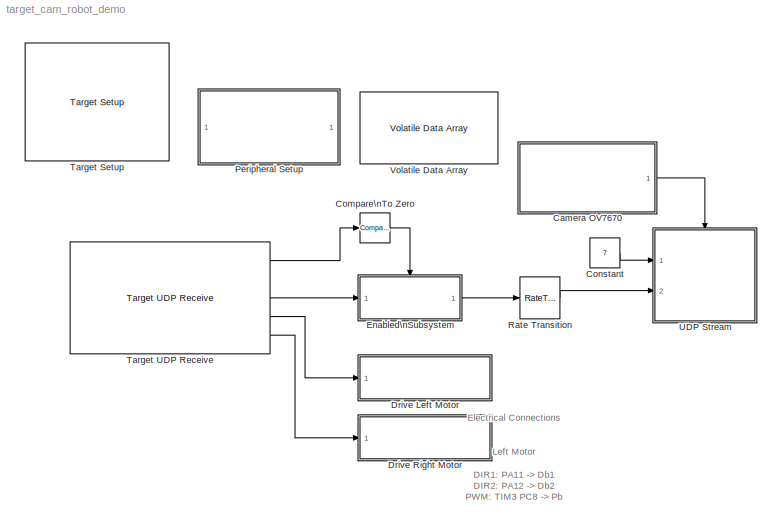
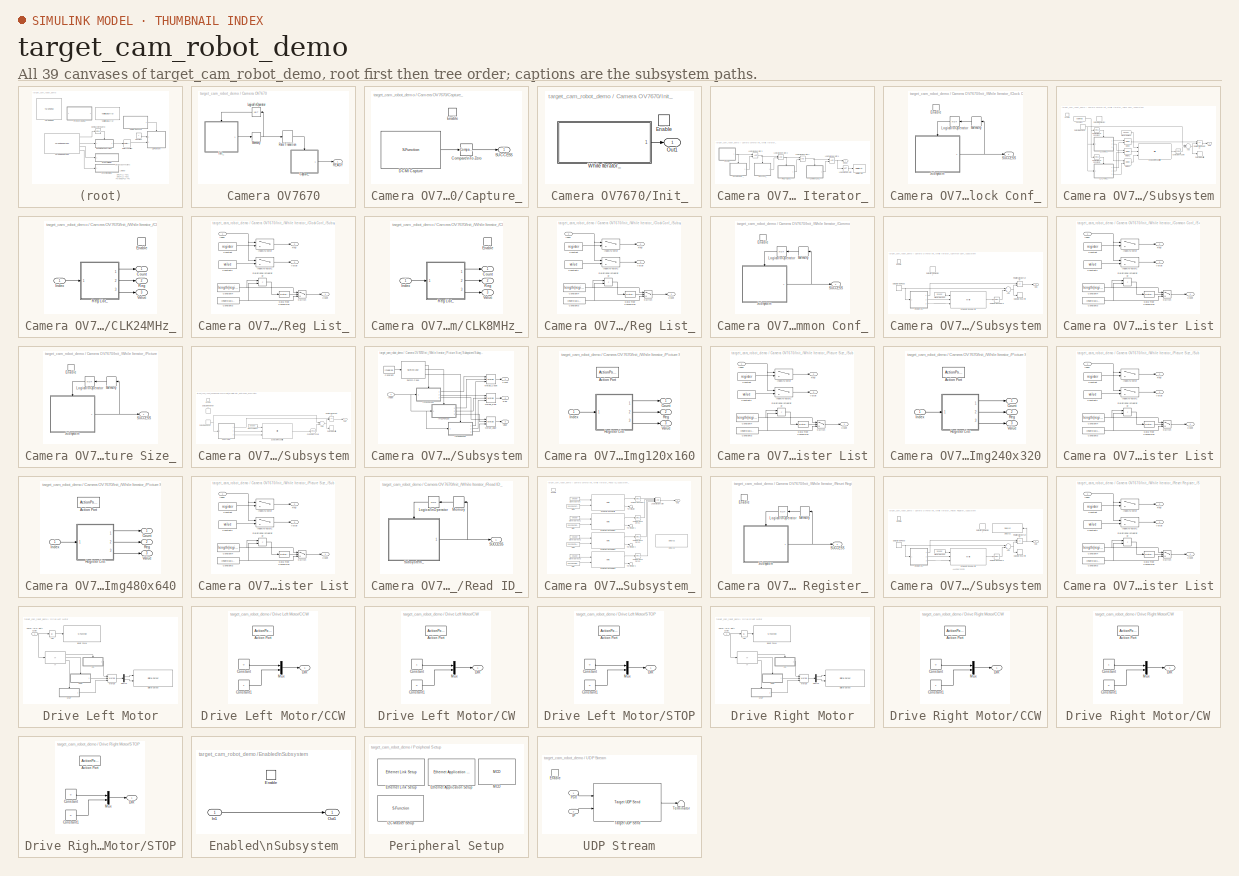
[diagram: thumbnail index - all 39 canvases of the model, root first then tree order]
MODEL target_cam_robot_demo
KIND model
CONFIG PreLoadFcn = waijung.modelPreload; % Required for working with Waijung Blockset. Do not remove.
BLOCK [SubSystem] Camera OV7670
  FunctionWithSeparateData = off
  MaskCallbackString = waijung_image_sensor_callback('camera');|waijung_image_sensor_callback('storagename');|||waijung_image_sensor_callback('module');||
  MaskDisplay = text(0.5, 0.5, '[OV7670]\\nPort: I2C1','ver','middle','hor','center');port_label('output', 1,'READY');
  MaskEnableString = on,on,on,on,on,on,on
  MaskHideContents = off
  MaskIconFrame = on
  MaskIconOpaque = on
  MaskIconRotate = none
  MaskIconUnits = normalized
  MaskInitialization = waijung_image_sensor_callback('init');
  MaskPortRotate = default
  MaskPromptString = Camera|Output buffer|XCLK input frequency|Image size|I2C Module|I2C Slave address|Sample time (sec)
  MaskSelfModifiable = on
  MaskStyleString = popup(OV7670),popup(Output|ExtRAM),popup(8MHz(MCO)|24MHz),popup(120 x 160|240 x 320|480 x 640),popup(1|2|3),edit,edit
  MaskTabNameString = ,,,,,,
  MaskToolTipString = on,on,on,on,on,on,on
  MaskTunableValueString = off,off,on,on,off,on,on
  MaskValueString = OV7670|ExtRAM|8MHz(MCO)|120 x 160|1|hex2dec('42')|0.01
  MaskVarAliasString = ,,,,,,
  MaskVariables = camera=@1;storagename=&2;xclkfreq=@3;imgsize=@4;module=@5;slvaddr=@6;sampletime=@7;
  MaskVisibilityString = off,on,on,on,on,on,on
  MinAlgLoopOccurrences = off
  Opaque = off
  Ports = [0, 1]
  PropExecContextOutsideSubsystem = off
  RTWSystemCode = Auto
  RequestExecContextInheritance = off
BLOCK [SubSystem] Camera OV7670/Capture_
  FunctionWithSeparateData = off
  MaskHideContents = off
  MinAlgLoopOccurrences = off
  Opaque = off
  Ports = [0, 1, 1]
  PropExecContextOutsideSubsystem = off
  RTWSystemCode = Auto
  RequestExecContextInheritance = off
  TreatAsAtomicUnit = on
BLOCK [Reference] Camera OV7670/Capture_/Compare\nTo Zero  REF=simulink/Logic and Bit\nOperations/Compare\nTo Zero
  FunctionWithSeparateData = off
  LogicOutDataTypeMode = uint8
  Ports = [1, 1]
  RTWMemSecDataConstants = Inherit from model
  RTWMemSecDataInternal = Inherit from model
  RTWMemSecDataParameters = Inherit from model
  RTWMemSecFuncExecute = Inherit from model
  RTWMemSecFuncInitTerm = Inherit from model
  ShowPortLabels = FromPortIcon
  SourceBlock = simulink/Logic and Bit\nOperations/Compare\nTo Zero
  SourceType = Compare To Zero
  SystemSampleTime = -1
  ZeroCross = off
  relop = ==
BLOCK [S-Function] Camera OV7670/Capture_/DCMI Capture
  EnableBusSupport = off
  FunctionName = stm32f4_dcmi
  MaskCallbackString = stm32f4_dcmi_callback('conf');||||||||stm32f4_dcmi_callback('storagename');|||stm32f4_dcmi_callback('storagesize');|stm32f4_dcmi_callback('remap');|stm32f4_dcmi_callback('sampletime');|stm32f4_dcmi_callback('blockid');|||||||||
  MaskDescription = Synchronize mode:\n - Hardware: Hardware synchronization data capture is synchronized with the HSYNC/VSYNC signals.\n - Embedded: Embedded synchronization data capture is synchronized with synchronization codes embedded in the data flow.\nPixel clock polarity:\n - Falling: Pixel clock active on Falling edge.\n - Rising: Pixel clock active on Rising edge.\nVertical, Horizontal sychronization polari...<+476ch>
  MaskDisplay = text(0.05, 0.5, 'Size: 38400\\nPins: Profile #2\\nTs (sec): 0.01','ver','middle','hor','left'); port_label('output', 1,'Status');
  MaskEnableString = on,off,off,on,on,on,off,on,on,on,on,on,on,on,off,on,on,on,on,on,on,on,on,off
  MaskHelp = web(fullfile(waijungdocroot,'stm32f4_dcmi.htm'), '-browser')
  MaskIconFrame = on
  MaskIconOpaque = on
  MaskIconRotate = none
  MaskIconUnits = normalized
  MaskInitialization = stm32f4_dcmi_callback('init');
  MaskPortRotate = default
  MaskPromptString = Configuration|Capture mode|Synchronization Mode|Pixel clock polarity|Vertical synchronization polarity|Horizontal synchronization polarity|Capture rate|Capture data size (Bytes)|Output buffer|Output buffer var name|Output buffer var type|Output buffer size (Total bytes must be equal to, or greater than DMA Transfer size)|Remap DCMI pins|Sample time (sec)|BlockID|Input port|Input Port Width|Input p...<+134ch>
  MaskSelfModifiable = on
  MaskStyleString = popup(DCMI),popup(Continuous|SnapShot),popup(Hardware|Embedded),popup(Falling|Rising),popup(High|Low),popup(High|Low),popup(All|1of2|1of4),edit,popup(<Manual Configure>),edit,popup(double|single|int8|uint8|int16|uint16|int32|uint32),edit,popup(Profile #1|Profile #2),edit,edit,edit,edit,edit,edit,edit,edit,edit,edit,edit
  MaskTabNameString = ,,,,,,,,,,,,,,,,,,,,,,,
  MaskToolTipString = on,on,on,on,on,on,on,on,on,on,on,on,on,on,on,on,on,on,on,on,on,on,on,on
  MaskTunableValueString = off,off,off,off,off,off,off,off,off,off,off,off,off,off,off,off,off,off,off,off,off,off,off,off
  MaskType = stm32f4_dcmi
  MaskValueString = DCMI|SnapShot|Hardware|Falling|High|High|All|120*160*2|<Manual Configure>|VolatileDataArray_Output|uint16|120*160|Profile #2|inf|CameraOV7670Capture_DCMICapture|[]|[]|{}|[7]|[]|{'Status'}|0|[\"DCMI\",\"SnapShot\",\"Hardware\",\"Falling\",\"High\",\"High\",\"All\",\"0\",\"HalfWord\",\"9600\",\"0\",\"0\",\"VolatileDataArray_Output\",\" \",\" \",\" \",\"1\",\"0\",\"0\",\"0\",\"0\",\"0\",\"0\",\"1\",\...<+178ch>
  MaskVarAliasString = ,,,,,,,,,,,,,,,,,,,,,,,
  MaskVariables = conf=&1;capturemode=&2;synchronizemode=&3;pclkpolarity=&4;vspolarity=&5;hspolarity=&6;capturerate=&7;capturesize=&8;storagename=&9;varname=&10;storagetype=&11;storagesize=&12;remap=&13;sampletime=@14;blockid=&15;inputporttype=@16;inputportwidth=@17;inputportlabel=&18;outputporttype=@19;outputportwidth=@20;outputportlabel=&21;compat=&22;optionstring=&23;portpinstr=&24;
  MaskVisibilityString = off,on,on,on,on,on,on,on,on,on,on,on,on,on,off,off,off,off,off,off,off,off,off,off
  Parameters = conf,inputporttype,inputportwidth,outputporttype,outputportwidth,optionstring,sampletime,blockid
  Ports = [0, 1]
BLOCK [EnablePort] Camera OV7670/Capture_/Enable
  Ports = []
BLOCK [Outport] Camera OV7670/Capture_/SUCCESS
  IconDisplay = Port number
  OutDataType = fixdt(1, 16)
  OutScaling = 2^0
BLOCK [SubSystem] Camera OV7670/Init_
  FunctionWithSeparateData = off
  MaskHideContents = off
  MinAlgLoopOccurrences = off
  Opaque = off
  Ports = [0, 1, 1]
  PropExecContextOutsideSubsystem = off
  RTWSystemCode = Auto
  RequestExecContextInheritance = off
BLOCK [EnablePort] Camera OV7670/Init_/Enable
  Ports = []
BLOCK [Outport] Camera OV7670/Init_/Out1
  IconDisplay = Port number
BLOCK [SubSystem] Camera OV7670/Init_/While Iterator_
  FunctionWithSeparateData = off
  MaskHideContents = off
  MinAlgLoopOccurrences = off
  Opaque = off
  Ports = [0, 1]
  PropExecContextOutsideSubsystem = off
  RTWSystemCode = Auto
  RequestExecContextInheritance = off
  TreatAsAtomicUnit = on
BLOCK [SubSystem] Camera OV7670/Init_/While Iterator_/Clock Conf_
  FunctionWithSeparateData = off
  MaskHideContents = off
  MinAlgLoopOccurrences = off
  Opaque = off
  Ports = [0, 1, 1]
  PropExecContextOutsideSubsystem = off
  RTWSystemCode = Auto
  RequestExecContextInheritance = off
BLOCK [EnablePort] Camera OV7670/Init_/While Iterator_/Clock Conf_/Enable
  Ports = []
BLOCK [Logic] Camera OV7670/Init_/While Iterator_/Clock Conf_/Logical\nOperator
  AllPortsSameDT = off
  LogicDataType = fixdt(0, 8)
  Operator = NOT
  OutDataTypeMode = boolean
  OutDataTypeStr = boolean
  Ports = [1, 1]
BLOCK [Memory] Camera OV7670/Init_/While Iterator_/Clock Conf_/Memory
  InheritSampleTime = on
BLOCK [Outport] Camera OV7670/Init_/While Iterator_/Clock Conf_/SUCCESS
  IconDisplay = Port number
  OutDataType = fixdt(1, 16)
  OutScaling = 2^0
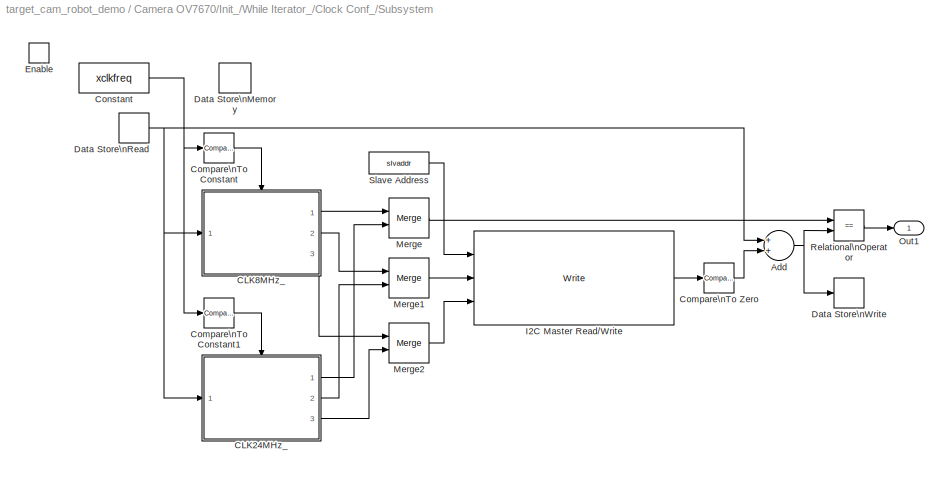
BLOCK [SubSystem] Camera OV7670/Init_/While Iterator_/Clock Conf_/Subsystem
  FunctionWithSeparateData = off
  MaskHideContents = off
  MinAlgLoopOccurrences = off
  Opaque = off
  Ports = [0, 1, 1]
  PropExecContextOutsideSubsystem = off
  RTWSystemCode = Auto
  RequestExecContextInheritance = off
BLOCK [Sum] Camera OV7670/Init_/While Iterator_/Clock Conf_/Subsystem/Add
  InputSameDT = off
  OutDataType = fixdt(1, 16)
  OutDataTypeMode = Inherit via internal rule
  OutDataTypeStr = Inherit: Inherit via internal rule
  OutScaling = 2^-10
  Ports = [2, 1]
  SaturateOnIntegerOverflow = off
BLOCK [SubSystem] Camera OV7670/Init_/While Iterator_/Clock Conf_/Subsystem/CLK24MHz_
  FunctionWithSeparateData = off
  MaskHideContents = off
  MinAlgLoopOccurrences = off
  Opaque = off
  Ports = [1, 3, 1]
  PropExecContextOutsideSubsystem = off
  RTWSystemCode = Auto
  RequestExecContextInheritance = off
  TreatAsAtomicUnit = on
BLOCK [Outport] Camera OV7670/Init_/While Iterator_/Clock Conf_/Subsystem/CLK24MHz_/Count
  IconDisplay = Port number
  OutDataType = fixdt(1, 16)
  OutScaling = 2^0
BLOCK [EnablePort] Camera OV7670/Init_/While Iterator_/Clock Conf_/Subsystem/CLK24MHz_/Enable
  Ports = []
BLOCK [Inport] Camera OV7670/Init_/While Iterator_/Clock Conf_/Subsystem/CLK24MHz_/Index
  IconDisplay = Port number
  OutDataType = fixdt(1, 16)
  OutScaling = 2^0
BLOCK [Outport] Camera OV7670/Init_/While Iterator_/Clock Conf_/Subsystem/CLK24MHz_/Reg
  IconDisplay = Port number
  OutDataType = fixdt(1, 16)
  OutScaling = 2^0
  Port = 2
BLOCK [SubSystem] Camera OV7670/Init_/While Iterator_/Clock Conf_/Subsystem/CLK24MHz_/Reg List_
  FunctionWithSeparateData = off
  MaskCallbackString = |
  MaskDescription = Count:\n - Number of Register-Value pair.\n - Determine from lowest size, between Register and Value.\nReg:\n - Register index.\nValue:\n - Data corresponding to specified register index.  <repeated x7 — deduplicated; at blocks: Reg List_, Register List>
  MaskEnableString = on,on
  MaskHideContents = off
  MaskIconFrame = on
  MaskIconOpaque = on
  MaskIconRotate = none
  MaskIconUnits = autoscale
  MaskPortRotate = default
  MaskPromptString = Register Index|Register Value
  MaskStyleString = edit,edit
  MaskTabNameString = ,
  MaskToolTipString = on,on
  MaskTunableValueString = on,on
  MaskValueString = uint8([17 107])|uint8([1 74])
  MaskVarAliasString = ,
  MaskVariables = register=@1;value=@2;
  MaskVisibilityString = on,on
  MinAlgLoopOccurrences = off
  Opaque = off
  Ports = [1, 3]
  PropExecContextOutsideSubsystem = off
  RTWSystemCode = Auto
  RequestExecContextInheritance = off
BLOCK [Constant] Camera OV7670/Init_/While Iterator_/Clock Conf_/Subsystem/CLK24MHz_/Reg List_/Constant
  OutDataType = fixdt(1, 16)
  OutScaling = 2^0
  Value = register
BLOCK [Constant] Camera OV7670/Init_/While Iterator_/Clock Conf_/Subsystem/CLK24MHz_/Reg List_/Constant2
  OutDataType = fixdt(1, 16)
  OutScaling = 2^0
  Value = value
BLOCK [Constant] Camera OV7670/Init_/While Iterator_/Clock Conf_/Subsystem/CLK24MHz_/Reg List_/Constant3
  OutDataType = fixdt(1, 16)
  OutScaling = 2^0
  Value = length(value)
BLOCK [Constant] Camera OV7670/Init_/While Iterator_/Clock Conf_/Subsystem/CLK24MHz_/Reg List_/Constant4
  OutDataType = fixdt(1, 16)
  OutScaling = 2^0
  Value = length(register)
BLOCK [Outport] Camera OV7670/Init_/While Iterator_/Clock Conf_/Subsystem/CLK24MHz_/Reg List_/Count
  IconDisplay = Port number
  OutDataType = fixdt(1, 16)
  OutScaling = 2^0
BLOCK [DataTypeConversion] Camera OV7670/Init_/While Iterator_/Clock Conf_/Subsystem/CLK24MHz_/Reg List_/Data Type Conversion
  OutDataType = fixdt(1, 16)
  OutScaling = 2^0
  RndMeth = Floor
  SaturateOnIntegerOverflow = off
BLOCK [Inport] Camera OV7670/Init_/While Iterator_/Clock Conf_/Subsystem/CLK24MHz_/Reg List_/Index
  IconDisplay = Port number
  OutDataType = fixdt(1, 16)
  OutScaling = 2^0
BLOCK [MultiPortSwitch] Camera OV7670/Init_/While Iterator_/Clock Conf_/Subsystem/CLK24MHz_/Reg List_/Index\nVector
  InputSameDT = off
  Inputs = 1
  OutDataType = fixdt(1, 16)
  OutScaling = 2^0
  Ports = [2, 1]
  SaturateOnIntegerOverflow = off
  zeroidx = on
BLOCK [MultiPortSwitch] Camera OV7670/Init_/While Iterator_/Clock Conf_/Subsystem/CLK24MHz_/Reg List_/Index\nVector1
  InputSameDT = off
  Inputs = 1
  OutDataType = fixdt(1, 16)
  OutScaling = 2^0
  Ports = [2, 1]
  SaturateOnIntegerOverflow = off
  zeroidx = on
BLOCK [Outport] Camera OV7670/Init_/While Iterator_/Clock Conf_/Subsystem/CLK24MHz_/Reg List_/Reg
  IconDisplay = Port number
  OutDataType = fixdt(1, 16)
  OutScaling = 2^0
  Port = 2
BLOCK [RelationalOperator] Camera OV7670/Init_/While Iterator_/Clock Conf_/Subsystem/CLK24MHz_/Reg List_/Relational\nOperator
  InputSameDT = off
  LogicDataType = fixdt(0, 8)
  LogicOutDataTypeMode = boolean
  Operator = <
  OutDataTypeStr = boolean
BLOCK [Switch] Camera OV7670/Init_/While Iterator_/Clock Conf_/Subsystem/CLK24MHz_/Reg List_/Switch
  Criteria = u2 ~= 0
  InputSameDT = off
  OutDataType = fixdt(1, 16)
  OutScaling = 2^0
  SaturateOnIntegerOverflow = off
BLOCK [Outport] Camera OV7670/Init_/While Iterator_/Clock Conf_/Subsystem/CLK24MHz_/Reg List_/Value
  IconDisplay = Port number
  OutDataType = fixdt(1, 16)
  OutScaling = 2^0
  Port = 3
BLOCK [Outport] Camera OV7670/Init_/While Iterator_/Clock Conf_/Subsystem/CLK24MHz_/Value
  IconDisplay = Port number
  OutDataType = fixdt(1, 16)
  OutScaling = 2^0
  Port = 3
BLOCK [SubSystem] Camera OV7670/Init_/While Iterator_/Clock Conf_/Subsystem/CLK8MHz_
  FunctionWithSeparateData = off
  MaskHideContents = off
  MinAlgLoopOccurrences = off
  Opaque = off
  Ports = [1, 3, 1]
  PropExecContextOutsideSubsystem = off
  RTWSystemCode = Auto
  RequestExecContextInheritance = off
  TreatAsAtomicUnit = on
BLOCK [Outport] Camera OV7670/Init_/While Iterator_/Clock Conf_/Subsystem/CLK8MHz_/Count
  IconDisplay = Port number
  OutDataType = fixdt(1, 16)
  OutScaling = 2^0
BLOCK [EnablePort] Camera OV7670/Init_/While Iterator_/Clock Conf_/Subsystem/CLK8MHz_/Enable
  Ports = []
BLOCK [Inport] Camera OV7670/Init_/While Iterator_/Clock Conf_/Subsystem/CLK8MHz_/Index
  IconDisplay = Port number
  OutDataType = fixdt(1, 16)
  OutScaling = 2^0
BLOCK [Outport] Camera OV7670/Init_/While Iterator_/Clock Conf_/Subsystem/CLK8MHz_/Reg
  IconDisplay = Port number
  OutDataType = fixdt(1, 16)
  OutScaling = 2^0
  Port = 2
BLOCK [SubSystem] Camera OV7670/Init_/While Iterator_/Clock Conf_/Subsystem/CLK8MHz_/Reg List_
  FunctionWithSeparateData = off
  MaskCallbackString = |
  MaskEnableString = on,on
  MaskHideContents = off
  MaskIconFrame = on
  MaskIconOpaque = on
  MaskIconRotate = none
  MaskIconUnits = autoscale
  MaskPortRotate = default
  MaskPromptString = Register Index|Register Value
  MaskStyleString = edit,edit
  MaskTabNameString = ,
  MaskToolTipString = on,on
  MaskTunableValueString = on,on
  MaskValueString = uint8([hex2dec('11') hex2dec('6B')])|uint8([hex2dec('00') hex2dec('80')])
  MaskVarAliasString = ,
  MaskVariables = register=@1;value=@2;
  MaskVisibilityString = on,on
  MinAlgLoopOccurrences = off
  Opaque = off
  Ports = [1, 3]
  PropExecContextOutsideSubsystem = off
  RTWSystemCode = Auto
  RequestExecContextInheritance = off
BLOCK [Constant] Camera OV7670/Init_/While Iterator_/Clock Conf_/Subsystem/CLK8MHz_/Reg List_/Constant
  OutDataType = fixdt(1, 16)
  OutScaling = 2^0
  Value = register
BLOCK [Constant] Camera OV7670/Init_/While Iterator_/Clock Conf_/Subsystem/CLK8MHz_/Reg List_/Constant2
  OutDataType = fixdt(1, 16)
  OutScaling = 2^0
  Value = value
BLOCK [Constant] Camera OV7670/Init_/While Iterator_/Clock Conf_/Subsystem/CLK8MHz_/Reg List_/Constant3
  OutDataType = fixdt(1, 16)
  OutScaling = 2^0
  Value = length(value)
BLOCK [Constant] Camera OV7670/Init_/While Iterator_/Clock Conf_/Subsystem/CLK8MHz_/Reg List_/Constant4
  OutDataType = fixdt(1, 16)
  OutScaling = 2^0
  Value = length(register)
BLOCK [Outport] Camera OV7670/Init_/While Iterator_/Clock Conf_/Subsystem/CLK8MHz_/Reg List_/Count
  IconDisplay = Port number
  OutDataType = fixdt(1, 16)
  OutScaling = 2^0
BLOCK [DataTypeConversion] Camera OV7670/Init_/While Iterator_/Clock Conf_/Subsystem/CLK8MHz_/Reg List_/Data Type Conversion
  OutDataType = fixdt(1, 16)
  OutScaling = 2^0
  RndMeth = Floor
  SaturateOnIntegerOverflow = off
BLOCK [Inport] Camera OV7670/Init_/While Iterator_/Clock Conf_/Subsystem/CLK8MHz_/Reg List_/Index
  IconDisplay = Port number
  OutDataType = fixdt(1, 16)
  OutScaling = 2^0
BLOCK [MultiPortSwitch] Camera OV7670/Init_/While Iterator_/Clock Conf_/Subsystem/CLK8MHz_/Reg List_/Index\nVector
  InputSameDT = off
  Inputs = 1
  OutDataType = fixdt(1, 16)
  OutScaling = 2^0
  Ports = [2, 1]
  SaturateOnIntegerOverflow = off
  zeroidx = on
BLOCK [MultiPortSwitch] Camera OV7670/Init_/While Iterator_/Clock Conf_/Subsystem/CLK8MHz_/Reg List_/Index\nVector1
  InputSameDT = off
  Inputs = 1
  OutDataType = fixdt(1, 16)
  OutScaling = 2^0
  Ports = [2, 1]
  SaturateOnIntegerOverflow = off
  zeroidx = on
BLOCK [Outport] Camera OV7670/Init_/While Iterator_/Clock Conf_/Subsystem/CLK8MHz_/Reg List_/Reg
  IconDisplay = Port number
  OutDataType = fixdt(1, 16)
  OutScaling = 2^0
  Port = 2
BLOCK [RelationalOperator] Camera OV7670/Init_/While Iterator_/Clock Conf_/Subsystem/CLK8MHz_/Reg List_/Relational\nOperator
  InputSameDT = off
  LogicDataType = fixdt(0, 8)
  LogicOutDataTypeMode = boolean
  Operator = <
  OutDataTypeStr = boolean
BLOCK [Switch] Camera OV7670/Init_/While Iterator_/Clock Conf_/Subsystem/CLK8MHz_/Reg List_/Switch
  Criteria = u2 ~= 0
  InputSameDT = off
  OutDataType = fixdt(1, 16)
  OutScaling = 2^0
  SaturateOnIntegerOverflow = off
BLOCK [Outport] Camera OV7670/Init_/While Iterator_/Clock Conf_/Subsystem/CLK8MHz_/Reg List_/Value
  IconDisplay = Port number
  OutDataType = fixdt(1, 16)
  OutScaling = 2^0
  Port = 3
BLOCK [Outport] Camera OV7670/Init_/While Iterator_/Clock Conf_/Subsystem/CLK8MHz_/Value
  IconDisplay = Port number
  OutDataType = fixdt(1, 16)
  OutScaling = 2^0
  Port = 3
BLOCK [Reference] Camera OV7670/Init_/While Iterator_/Clock Conf_/Subsystem/Compare\nTo Constant  REF=simulink/Logic and Bit\nOperations/Compare\nTo Constant
  FunctionWithSeparateData = off
  LogicOutDataTypeMode = boolean
  Ports = [1, 1]
  RTWMemSecDataConstants = Inherit from model
  RTWMemSecDataInternal = Inherit from model
  RTWMemSecDataParameters = Inherit from model
  RTWMemSecFuncExecute = Inherit from model
  RTWMemSecFuncInitTerm = Inherit from model
  ShowPortLabels = FromPortIcon
  SourceBlock = simulink/Logic and Bit\nOperations/Compare\nTo Constant
  SourceType = Compare To Constant
  SystemSampleTime = -1
  ZeroCross = off
  const = 1
  relop = ==
BLOCK [Reference] Camera OV7670/Init_/While Iterator_/Clock Conf_/Subsystem/Compare\nTo Constant1  REF=simulink/Logic and Bit\nOperations/Compare\nTo Constant
  FunctionWithSeparateData = off
  LogicOutDataTypeMode = boolean
  Ports = [1, 1]
  RTWMemSecDataConstants = Inherit from model
  RTWMemSecDataInternal = Inherit from model
  RTWMemSecDataParameters = Inherit from model
  RTWMemSecFuncExecute = Inherit from model
  RTWMemSecFuncInitTerm = Inherit from model
  ShowPortLabels = FromPortIcon
  SourceBlock = simulink/Logic and Bit\nOperations/Compare\nTo Constant
  SourceType = Compare To Constant
  SystemSampleTime = -1
  ZeroCross = off
  const = 2
  relop = ==
BLOCK [Reference] Camera OV7670/Init_/While Iterator_/Clock Conf_/Subsystem/Compare\nTo Zero  REF=simulink/Logic and Bit\nOperations/Compare\nTo Zero
  FunctionWithSeparateData = off
  LogicOutDataTypeMode = uint8
  Ports = [1, 1]
  RTWMemSecDataConstants = Inherit from model
  RTWMemSecDataInternal = Inherit from model
  RTWMemSecDataParameters = Inherit from model
  RTWMemSecFuncExecute = Inherit from model
  RTWMemSecFuncInitTerm = Inherit from model
  ShowPortLabels = FromPortIcon
  SourceBlock = simulink/Logic and Bit\nOperations/Compare\nTo Zero
  SourceType = Compare To Zero
  SystemSampleTime = -1
  ZeroCross = off
  relop = ==
BLOCK [Constant] Camera OV7670/Init_/While Iterator_/Clock Conf_/Subsystem/Constant
  OutDataType = fixdt(1, 16)
  OutScaling = 2^0
  Value = xclkfreq
BLOCK [DataStoreMemory] Camera OV7670/Init_/While Iterator_/Clock Conf_/Subsystem/Data Store\nMemory
  DataStoreName = Index
  DataType = uint8
  OutDataType = fixdt(1, 16)
  OutDataTypeStr = uint8
  OutScaling = 2^0
  RTWStateStorageClass = Auto
  ReadBeforeWriteMsg = warning
  VectorParams1D = on
  WriteAfterReadMsg = warning
  WriteAfterWriteMsg = warning
BLOCK [DataStoreRead] Camera OV7670/Init_/While Iterator_/Clock Conf_/Subsystem/Data Store\nRead
  DataStoreName = Index
  SampleTime = -1
BLOCK [DataStoreWrite] Camera OV7670/Init_/While Iterator_/Clock Conf_/Subsystem/Data Store\nWrite
  DataStoreName = Index
  SampleTime = -1
BLOCK [EnablePort] Camera OV7670/Init_/While Iterator_/Clock Conf_/Subsystem/Enable
  Ports = []
BLOCK [Reference] Camera OV7670/Init_/While Iterator_/Clock Conf_/Subsystem/I2C Master Read//Write  REF=stm32f4_i2c_lib/I2C Master Read//Write
  Ports = [3, 1]
  SourceBlock = stm32f4_i2c_lib/I2C Master Read//Write
  SourceType = stm32f4_i2c
  blockid = CameraOV7670Init_WhileIterator_ClockConf_SubsystemI2CMasterReadWrite
  clkspeed = 400
  configuration = Transaction
  confstr = [\"C\",\"9\",\"A\",\"8\",\"1\",\"1\",\"6\",\"0\",\"I2C_DutyCycle_2\",\"5\",\"off\"]
  dutycycle = TLow/THigh = 2
  forcestop = off
  inputtypearray = [3 3 3 3]
  lastmodule = 3
  module = 1
  outputtypearray = [1 3]
  readcount = 0
  sampletime = -1
  sampletimestr = -1
  sclpin = A8
  sdapin = C9
  timeout = 25
  transfer = Blocking
  waitwritetime = 5
  writecount = 2
BLOCK [Merge] Camera OV7670/Init_/While Iterator_/Clock Conf_/Subsystem/Merge
  Ports = [2, 1]
BLOCK [Merge] Camera OV7670/Init_/While Iterator_/Clock Conf_/Subsystem/Merge1
  Ports = [2, 1]
BLOCK [Merge] Camera OV7670/Init_/While Iterator_/Clock Conf_/Subsystem/Merge2
  Ports = [2, 1]
BLOCK [Outport] Camera OV7670/Init_/While Iterator_/Clock Conf_/Subsystem/Out1
  IconDisplay = Port number
BLOCK [RelationalOperator] Camera OV7670/Init_/While Iterator_/Clock Conf_/Subsystem/Relational\nOperator
  InputSameDT = off
  LogicDataType = fixdt(0, 8)
  LogicOutDataTypeMode = boolean
  Operator = ==
  OutDataTypeStr = boolean
BLOCK [Constant] Camera OV7670/Init_/While Iterator_/Clock Conf_/Subsystem/Slave Address
  OutDataType = fixdt(1, 16)
  OutDataTypeMode = uint8
  OutDataTypeStr = uint8
  OutScaling = 2^0
  Value = slvaddr
BLOCK [SubSystem] Camera OV7670/Init_/While Iterator_/Common Conf_
  FunctionWithSeparateData = off
  MaskHideContents = off
  MinAlgLoopOccurrences = off
  Opaque = off
  Ports = [0, 1, 1]
  PropExecContextOutsideSubsystem = off
  RTWSystemCode = Auto
  RequestExecContextInheritance = off
BLOCK [EnablePort] Camera OV7670/Init_/While Iterator_/Common Conf_/Enable
  Ports = []
BLOCK [Logic] Camera OV7670/Init_/While Iterator_/Common Conf_/Logical\nOperator
  AllPortsSameDT = off
  LogicDataType = fixdt(0, 8)
  Operator = NOT
  OutDataTypeMode = boolean
  OutDataTypeStr = boolean
  Ports = [1, 1]
BLOCK [Memory] Camera OV7670/Init_/While Iterator_/Common Conf_/Memory
  InheritSampleTime = on
BLOCK [Outport] Camera OV7670/Init_/While Iterator_/Common Conf_/SUCCESS
  IconDisplay = Port number
  OutDataType = fixdt(1, 16)
  OutScaling = 2^0
BLOCK [SubSystem] Camera OV7670/Init_/While Iterator_/Common Conf_/Subsystem
  FunctionWithSeparateData = off
  MaskHideContents = off
  MinAlgLoopOccurrences = off
  Opaque = off
  Ports = [0, 1, 1]
  PropExecContextOutsideSubsystem = off
  RTWSystemCode = Auto
  RequestExecContextInheritance = off
BLOCK [Sum] Camera OV7670/Init_/While Iterator_/Common Conf_/Subsystem/Add
  InputSameDT = off
  OutDataType = fixdt(1, 16)
  OutDataTypeMode = Inherit via internal rule
  OutDataTypeStr = Inherit: Inherit via internal rule
  OutScaling = 2^-10
  Ports = [2, 1]
  SaturateOnIntegerOverflow = off
BLOCK [Reference] Camera OV7670/Init_/While Iterator_/Common Conf_/Subsystem/Compare\nTo Zero  REF=simulink/Logic and Bit\nOperations/Compare\nTo Zero
  FunctionWithSeparateData = off
  LogicOutDataTypeMode = uint8
  Ports = [1, 1]
  RTWMemSecDataConstants = Inherit from model
  RTWMemSecDataInternal = Inherit from model
  RTWMemSecDataParameters = Inherit from model
  RTWMemSecFuncExecute = Inherit from model
  RTWMemSecFuncInitTerm = Inherit from model
  ShowPortLabels = FromPortIcon
  SourceBlock = simulink/Logic and Bit\nOperations/Compare\nTo Zero
  SourceType = Compare To Zero
  SystemSampleTime = -1
  ZeroCross = off
  relop = ==
BLOCK [DataStoreMemory] Camera OV7670/Init_/While Iterator_/Common Conf_/Subsystem/Data Store\nMemory
  DataStoreName = Index
  DataType = uint8
  OutDataType = fixdt(1, 16)
  OutDataTypeStr = uint8
  OutScaling = 2^0
  RTWStateStorageClass = Auto
  ReadBeforeWriteMsg = warning
  VectorParams1D = on
  WriteAfterReadMsg = warning
  WriteAfterWriteMsg = warning
BLOCK [DataStoreRead] Camera OV7670/Init_/While Iterator_/Common Conf_/Subsystem/Data Store\nRead
  DataStoreName = Index
  SampleTime = -1
BLOCK [DataStoreWrite] Camera OV7670/Init_/While Iterator_/Common Conf_/Subsystem/Data Store\nWrite
  DataStoreName = Index
  SampleTime = -1
BLOCK [EnablePort] Camera OV7670/Init_/While Iterator_/Common Conf_/Subsystem/Enable
  Ports = []
BLOCK [Reference] Camera OV7670/Init_/While Iterator_/Common Conf_/Subsystem/I2C Master Read//Write  REF=stm32f4_i2c_lib/I2C Master Read//Write
  Ports = [3, 1]
  SourceBlock = stm32f4_i2c_lib/I2C Master Read//Write
  SourceType = stm32f4_i2c
  blockid = CameraOV7670Init_WhileIterator_CommonConf_SubsystemI2CMasterReadWrite
  clkspeed = 400
  configuration = Transaction
  confstr = [\"C\",\"9\",\"A\",\"8\",\"1\",\"1\",\"6\",\"0\",\"I2C_DutyCycle_2\",\"5\",\"off\"]
  dutycycle = TLow/THigh = 2
  forcestop = off
  inputtypearray = [3 3 3 3]
  lastmodule = 3
  module = 1
  outputtypearray = [1 3]
  readcount = 0
  sampletime = -1
  sampletimestr = -1
  sclpin = A8
  sdapin = C9
  timeout = 25
  transfer = Blocking
  waitwritetime = 5
  writecount = 2
BLOCK [Outport] Camera OV7670/Init_/While Iterator_/Common Conf_/Subsystem/Out1
  IconDisplay = Port number
BLOCK [SubSystem] Camera OV7670/Init_/While Iterator_/Common Conf_/Subsystem/Register List
  FunctionWithSeparateData = off
  MaskCallbackString = |
  MaskEnableString = on,on
  MaskHideContents = off
  MaskIconFrame = on
  MaskIconOpaque = on
  MaskIconRotate = none
  MaskIconUnits = autoscale
  MaskPortRotate = default
  MaskPromptString = Register Index|Register Value
  MaskStyleString = edit,edit
  MaskTabNameString = ,
  MaskToolTipString = on,on
  MaskTunableValueString = on,on
  MaskValueString = uint8([122,123,124,125,126,127,128,129,130,131,132,133,134,135,136,137,19,21,0,16,13,20,165,171,36,37,38,159,160,161,166,167,168,169,170,19,14,15,22,30,33,34,41,51,53,55,56,57,60,77,78,105,116,141,142,143,144,145,146,150,154,176,177,178,179,184,67,68,69,70,71,72,89,90,91,92,93,94,100,101,102,148,149,108,109,110,111,106,1,2,19,21,79,80,81,82,83,84,85,86,87,88,65,63,117,118,76,119,75,201,65,86,52,59...<+406ch>
  MaskVarAliasString = ,
  MaskVariables = register=@1;value=@2;
  MaskVisibilityString = on,on
  MinAlgLoopOccurrences = off
  Opaque = off
  Ports = [1, 3]
  PropExecContextOutsideSubsystem = off
  RTWSystemCode = Auto
  RequestExecContextInheritance = off
BLOCK [Constant] Camera OV7670/Init_/While Iterator_/Common Conf_/Subsystem/Register List/Constant
  OutDataType = fixdt(1, 16)
  OutScaling = 2^0
  Value = register
BLOCK [Constant] Camera OV7670/Init_/While Iterator_/Common Conf_/Subsystem/Register List/Constant2
  OutDataType = fixdt(1, 16)
  OutScaling = 2^0
  Value = value
BLOCK [Constant] Camera OV7670/Init_/While Iterator_/Common Conf_/Subsystem/Register List/Constant3
  OutDataType = fixdt(1, 16)
  OutScaling = 2^0
  Value = length(value)
BLOCK [Constant] Camera OV7670/Init_/While Iterator_/Common Conf_/Subsystem/Register List/Constant4
  OutDataType = fixdt(1, 16)
  OutScaling = 2^0
  Value = length(register)
BLOCK [Outport] Camera OV7670/Init_/While Iterator_/Common Conf_/Subsystem/Register List/Count
  IconDisplay = Port number
  OutDataType = fixdt(1, 16)
  OutScaling = 2^0
BLOCK [DataTypeConversion] Camera OV7670/Init_/While Iterator_/Common Conf_/Subsystem/Register List/Data Type Conversion
  OutDataType = fixdt(1, 16)
  OutScaling = 2^0
  RndMeth = Floor
  SaturateOnIntegerOverflow = off
BLOCK [Inport] Camera OV7670/Init_/While Iterator_/Common Conf_/Subsystem/Register List/Index
  IconDisplay = Port number
  OutDataType = fixdt(1, 16)
  OutScaling = 2^0
BLOCK [MultiPortSwitch] Camera OV7670/Init_/While Iterator_/Common Conf_/Subsystem/Register List/Index\nVector
  InputSameDT = off
  Inputs = 1
  OutDataType = fixdt(1, 16)
  OutScaling = 2^0
  Ports = [2, 1]
  SaturateOnIntegerOverflow = off
  zeroidx = on
BLOCK [MultiPortSwitch] Camera OV7670/Init_/While Iterator_/Common Conf_/Subsystem/Register List/Index\nVector1
  InputSameDT = off
  Inputs = 1
  OutDataType = fixdt(1, 16)
  OutScaling = 2^0
  Ports = [2, 1]
  SaturateOnIntegerOverflow = off
  zeroidx = on
BLOCK [Outport] Camera OV7670/Init_/While Iterator_/Common Conf_/Subsystem/Register List/Reg
  IconDisplay = Port number
  OutDataType = fixdt(1, 16)
  OutScaling = 2^0
  Port = 2
BLOCK [RelationalOperator] Camera OV7670/Init_/While Iterator_/Common Conf_/Subsystem/Register List/Relational\nOperator
  InputSameDT = off
  LogicDataType = fixdt(0, 8)
  LogicOutDataTypeMode = boolean
  Operator = <
  OutDataTypeStr = boolean
BLOCK [Switch] Camera OV7670/Init_/While Iterator_/Common Conf_/Subsystem/Register List/Switch
  Criteria = u2 ~= 0
  InputSameDT = off
  OutDataType = fixdt(1, 16)
  OutScaling = 2^0
  SaturateOnIntegerOverflow = off
BLOCK [Outport] Camera OV7670/Init_/While Iterator_/Common Conf_/Subsystem/Register List/Value
  IconDisplay = Port number
  OutDataType = fixdt(1, 16)
  OutScaling = 2^0
  Port = 3
BLOCK [RelationalOperator] Camera OV7670/Init_/While Iterator_/Common Conf_/Subsystem/Relational\nOperator
  InputSameDT = off
  LogicDataType = fixdt(0, 8)
  LogicOutDataTypeMode = boolean
  Operator = ==
  OutDataTypeStr = boolean
BLOCK [Constant] Camera OV7670/Init_/While Iterator_/Common Conf_/Subsystem/Slave Address
  OutDataType = fixdt(1, 16)
  OutDataTypeMode = uint8
  OutDataTypeStr = uint8
  OutScaling = 2^0
  Value = slvaddr
BLOCK [Logic] Camera OV7670/Init_/While Iterator_/Logical\nOperator
  AllPortsSameDT = off
  LogicDataType = fixdt(0, 8)
  Operator = NOT
  OutDataTypeMode = boolean
  OutDataTypeStr = boolean
  Ports = [1, 1]
BLOCK [Logic] Camera OV7670/Init_/While Iterator_/Logical\nOperator1
  AllPortsSameDT = off
  LogicDataType = fixdt(0, 8)
  OutDataTypeMode = boolean
  OutDataTypeStr = boolean
  Ports = [2, 1]
BLOCK [Logic] Camera OV7670/Init_/While Iterator_/Logical\nOperator2
  AllPortsSameDT = off
  LogicDataType = fixdt(0, 8)
  OutDataTypeMode = boolean
  OutDataTypeStr = boolean
  Ports = [2, 1]
BLOCK [Logic] Camera OV7670/Init_/While Iterator_/Logical\nOperator3
  AllPortsSameDT = off
  LogicDataType = fixdt(0, 8)
  OutDataTypeMode = boolean
  OutDataTypeStr = boolean
  Ports = [2, 1]
BLOCK [Logic] Camera OV7670/Init_/While Iterator_/Logical\nOperator4
  AllPortsSameDT = off
  LogicDataType = fixdt(0, 8)
  OutDataTypeMode = boolean
  OutDataTypeStr = boolean
  Ports = [2, 1]
BLOCK [SubSystem] Camera OV7670/Init_/While Iterator_/Picture Size_
  FunctionWithSeparateData = off
  MaskHideContents = off
  MinAlgLoopOccurrences = off
  Opaque = off
  Ports = [0, 1, 1]
  PropExecContextOutsideSubsystem = off
  RTWSystemCode = Auto
  RequestExecContextInheritance = off
BLOCK [EnablePort] Camera OV7670/Init_/While Iterator_/Picture Size_/Enable
  Ports = []
BLOCK [Logic] Camera OV7670/Init_/While Iterator_/Picture Size_/Logical\nOperator
  AllPortsSameDT = off
  LogicDataType = fixdt(0, 8)
  Operator = NOT
  OutDataTypeMode = boolean
  OutDataTypeStr = boolean
  Ports = [1, 1]
BLOCK [Memory] Camera OV7670/Init_/While Iterator_/Picture Size_/Memory
  InheritSampleTime = on
BLOCK [Outport] Camera OV7670/Init_/While Iterator_/Picture Size_/SUCCESS
  IconDisplay = Port number
  OutDataType = fixdt(1, 16)
  OutScaling = 2^0
BLOCK [SubSystem] Camera OV7670/Init_/While Iterator_/Picture Size_/Subsystem
  FunctionWithSeparateData = off
  MaskHideContents = off
  MinAlgLoopOccurrences = off
  Opaque = off
  Ports = [0, 1, 1]
  PropExecContextOutsideSubsystem = off
  RTWSystemCode = Auto
  RequestExecContextInheritance = off
BLOCK [Sum] Camera OV7670/Init_/While Iterator_/Picture Size_/Subsystem/Add
  InputSameDT = off
  OutDataType = fixdt(1, 16)
  OutDataTypeMode = Inherit via internal rule
  OutDataTypeStr = Inherit: Inherit via internal rule
  OutScaling = 2^-10
  Ports = [2, 1]
  SaturateOnIntegerOverflow = off
BLOCK [Reference] Camera OV7670/Init_/While Iterator_/Picture Size_/Subsystem/Compare\nTo Zero  REF=simulink/Logic and Bit\nOperations/Compare\nTo Zero
  FunctionWithSeparateData = off
  LogicOutDataTypeMode = uint8
  Ports = [1, 1]
  RTWMemSecDataConstants = Inherit from model
  RTWMemSecDataInternal = Inherit from model
  RTWMemSecDataParameters = Inherit from model
  RTWMemSecFuncExecute = Inherit from model
  RTWMemSecFuncInitTerm = Inherit from model
  ShowPortLabels = FromPortIcon
  SourceBlock = simulink/Logic and Bit\nOperations/Compare\nTo Zero
  SourceType = Compare To Zero
  SystemSampleTime = -1
  ZeroCross = off
  relop = ==
BLOCK [DataStoreMemory] Camera OV7670/Init_/While Iterator_/Picture Size_/Subsystem/Data Store\nMemory
  DataStoreName = Index
  DataType = uint8
  OutDataType = fixdt(1, 16)
  OutDataTypeStr = uint8
  OutScaling = 2^0
  RTWStateStorageClass = Auto
  ReadBeforeWriteMsg = warning
  VectorParams1D = on
  WriteAfterReadMsg = warning
  WriteAfterWriteMsg = warning
BLOCK [DataStoreRead] Camera OV7670/Init_/While Iterator_/Picture Size_/Subsystem/Data Store\nRead
  DataStoreName = Index
  SampleTime = -1
BLOCK [DataStoreWrite] Camera OV7670/Init_/While Iterator_/Picture Size_/Subsystem/Data Store\nWrite
  DataStoreName = Index
  SampleTime = -1
BLOCK [EnablePort] Camera OV7670/Init_/While Iterator_/Picture Size_/Subsystem/Enable
  Ports = []
BLOCK [Reference] Camera OV7670/Init_/While Iterator_/Picture Size_/Subsystem/I2C Master Read//Write  REF=stm32f4_i2c_lib/I2C Master Read//Write
  Ports = [3, 1]
  SourceBlock = stm32f4_i2c_lib/I2C Master Read//Write
  SourceType = stm32f4_i2c
  blockid = CameraOV7670Init_WhileIterator_PictureSize_SubsystemI2CMasterReadWrite
  clkspeed = 400
  configuration = Transaction
  confstr = [\"C\",\"9\",\"A\",\"8\",\"1\",\"1\",\"6\",\"0\",\"I2C_DutyCycle_2\",\"5\",\"off\"]
  dutycycle = TLow/THigh = 2
  forcestop = off
  inputtypearray = [3 3 3 3]
  lastmodule = 3
  module = 1
  outputtypearray = [1 3]
  readcount = 0
  sampletime = -1
  sampletimestr = -1
  sclpin = A8
  sdapin = C9
  timeout = 25
  transfer = Blocking
  waitwritetime = 5
  writecount = 2
BLOCK [Outport] Camera OV7670/Init_/While Iterator_/Picture Size_/Subsystem/Out1
  IconDisplay = Port number
BLOCK [RelationalOperator] Camera OV7670/Init_/While Iterator_/Picture Size_/Subsystem/Relational\nOperator
  InputSameDT = off
  LogicDataType = fixdt(0, 8)
  LogicOutDataTypeMode = boolean
  Operator = ==
  OutDataTypeStr = boolean
BLOCK [Constant] Camera OV7670/Init_/While Iterator_/Picture Size_/Subsystem/Slave Address
  OutDataType = fixdt(1, 16)
  OutDataTypeMode = uint8
  OutDataTypeStr = uint8
  OutScaling = 2^0
  Value = slvaddr
BLOCK [SubSystem] Camera OV7670/Init_/While Iterator_/Picture Size_/Subsystem/Subsystem
  FunctionWithSeparateData = off
  MaskHideContents = off
  MinAlgLoopOccurrences = off
  Opaque = off
  Ports = [1, 3]
  PropExecContextOutsideSubsystem = off
  RTWSystemCode = Auto
  RequestExecContextInheritance = off
BLOCK [Constant] Camera OV7670/Init_/While Iterator_/Picture Size_/Subsystem/Subsystem/Constant
  OutDataType = fixdt(1, 16)
  OutScaling = 2^0
  Value = imgsize
BLOCK [Outport] Camera OV7670/Init_/While Iterator_/Picture Size_/Subsystem/Subsystem/Count
  IconDisplay = Port number
BLOCK [SubSystem] Camera OV7670/Init_/While Iterator_/Picture Size_/Subsystem/Subsystem/Img120x160
  FunctionWithSeparateData = off
  MaskHideContents = off
  MinAlgLoopOccurrences = off
  Opaque = off
  Ports = [1, 3, 0, 0, 0, 0, 0, 1]
  PropExecContextOutsideSubsystem = off
  RTWSystemCode = Auto
  RequestExecContextInheritance = off
  TreatAsAtomicUnit = on
BLOCK [ActionPort] Camera OV7670/Init_/While Iterator_/Picture Size_/Subsystem/Subsystem/Img120x160/Action Port
  ActionType = case
BLOCK [Outport] Camera OV7670/Init_/While Iterator_/Picture Size_/Subsystem/Subsystem/Img120x160/Count
  IconDisplay = Port number
  OutDataType = fixdt(1, 16)
  OutScaling = 2^0
BLOCK [Inport] Camera OV7670/Init_/While Iterator_/Picture Size_/Subsystem/Subsystem/Img120x160/Index
  IconDisplay = Port number
  OutDataType = fixdt(1, 16)
  OutScaling = 2^0
BLOCK [Outport] Camera OV7670/Init_/While Iterator_/Picture Size_/Subsystem/Subsystem/Img120x160/Reg
  IconDisplay = Port number
  OutDataType = fixdt(1, 16)
  OutScaling = 2^0
  Port = 2
BLOCK [SubSystem] Camera OV7670/Init_/While Iterator_/Picture Size_/Subsystem/Subsystem/Img120x160/Register List
  FunctionWithSeparateData = off
  MaskCallbackString = |
  MaskEnableString = on,on
  MaskHideContents = off
  MaskIconFrame = on
  MaskIconOpaque = on
  MaskIconRotate = none
  MaskIconUnits = autoscale
  MaskPortRotate = default
  MaskPromptString = Register Index|Register Value
  MaskStyleString = edit,edit
  MaskTabNameString = ,
  MaskToolTipString = on,on
  MaskTunableValueString = on,on
  MaskValueString = uint8([58,61,140,64,18,50,23,24,25,26,3,12,62,112,113,114,115,162])|uint8([8,192,0,208,20,128,22,4,3,123,10,4,26,58,53,238,242,2])
  MaskVarAliasString = ,
  MaskVariables = register=@1;value=@2;
  MaskVisibilityString = on,on
  MinAlgLoopOccurrences = off
  Opaque = off
  Ports = [1, 3]
  PropExecContextOutsideSubsystem = off
  RTWSystemCode = Auto
  RequestExecContextInheritance = off
BLOCK [Constant] Camera OV7670/Init_/While Iterator_/Picture Size_/Subsystem/Subsystem/Img120x160/Register List/Constant
  OutDataType = fixdt(1, 16)
  OutScaling = 2^0
  Value = register
BLOCK [Constant] Camera OV7670/Init_/While Iterator_/Picture Size_/Subsystem/Subsystem/Img120x160/Register List/Constant2
  OutDataType = fixdt(1, 16)
  OutScaling = 2^0
  Value = value
BLOCK [Constant] Camera OV7670/Init_/While Iterator_/Picture Size_/Subsystem/Subsystem/Img120x160/Register List/Constant3
  OutDataType = fixdt(1, 16)
  OutScaling = 2^0
  Value = length(value)
BLOCK [Constant] Camera OV7670/Init_/While Iterator_/Picture Size_/Subsystem/Subsystem/Img120x160/Register List/Constant4
  OutDataType = fixdt(1, 16)
  OutScaling = 2^0
  Value = length(register)
BLOCK [Outport] Camera OV7670/Init_/While Iterator_/Picture Size_/Subsystem/Subsystem/Img120x160/Register List/Count
  IconDisplay = Port number
  OutDataType = fixdt(1, 16)
  OutScaling = 2^0
BLOCK [DataTypeConversion] Camera OV7670/Init_/While Iterator_/Picture Size_/Subsystem/Subsystem/Img120x160/Register List/Data Type Conversion
  OutDataType = fixdt(1, 16)
  OutScaling = 2^0
  RndMeth = Floor
  SaturateOnIntegerOverflow = off
BLOCK [Inport] Camera OV7670/Init_/While Iterator_/Picture Size_/Subsystem/Subsystem/Img120x160/Register List/Index
  IconDisplay = Port number
  OutDataType = fixdt(1, 16)
  OutScaling = 2^0
BLOCK [MultiPortSwitch] Camera OV7670/Init_/While Iterator_/Picture Size_/Subsystem/Subsystem/Img120x160/Register List/Index\nVector
  InputSameDT = off
  Inputs = 1
  OutDataType = fixdt(1, 16)
  OutScaling = 2^0
  Ports = [2, 1]
  SaturateOnIntegerOverflow = off
  zeroidx = on
BLOCK [MultiPortSwitch] Camera OV7670/Init_/While Iterator_/Picture Size_/Subsystem/Subsystem/Img120x160/Register List/Index\nVector1
  InputSameDT = off
  Inputs = 1
  OutDataType = fixdt(1, 16)
  OutScaling = 2^0
  Ports = [2, 1]
  SaturateOnIntegerOverflow = off
  zeroidx = on
BLOCK [Outport] Camera OV7670/Init_/While Iterator_/Picture Size_/Subsystem/Subsystem/Img120x160/Register List/Reg
  IconDisplay = Port number
  OutDataType = fixdt(1, 16)
  OutScaling = 2^0
  Port = 2
BLOCK [RelationalOperator] Camera OV7670/Init_/While Iterator_/Picture Size_/Subsystem/Subsystem/Img120x160/Register List/Relational\nOperator
  InputSameDT = off
  LogicDataType = fixdt(0, 8)
  LogicOutDataTypeMode = boolean
  Operator = <
  OutDataTypeStr = boolean
BLOCK [Switch] Camera OV7670/Init_/While Iterator_/Picture Size_/Subsystem/Subsystem/Img120x160/Register List/Switch
  Criteria = u2 ~= 0
  InputSameDT = off
  OutDataType = fixdt(1, 16)
  OutScaling = 2^0
  SaturateOnIntegerOverflow = off
BLOCK [Outport] Camera OV7670/Init_/While Iterator_/Picture Size_/Subsystem/Subsystem/Img120x160/Register List/Value
  IconDisplay = Port number
  OutDataType = fixdt(1, 16)
  OutScaling = 2^0
  Port = 3
BLOCK [Outport] Camera OV7670/Init_/While Iterator_/Picture Size_/Subsystem/Subsystem/Img120x160/Value
  IconDisplay = Port number
  OutDataType = fixdt(1, 16)
  OutScaling = 2^0
  Port = 3
BLOCK [SubSystem] Camera OV7670/Init_/While Iterator_/Picture Size_/Subsystem/Subsystem/Img240x320
  FunctionWithSeparateData = off
  MaskHideContents = off
  MinAlgLoopOccurrences = off
  Opaque = off
  Ports = [1, 3, 0, 0, 0, 0, 0, 1]
  PropExecContextOutsideSubsystem = off
  RTWSystemCode = Auto
  RequestExecContextInheritance = off
  TreatAsAtomicUnit = on
BLOCK [ActionPort] Camera OV7670/Init_/While Iterator_/Picture Size_/Subsystem/Subsystem/Img240x320/Action Port
  ActionType = case
BLOCK [Outport] Camera OV7670/Init_/While Iterator_/Picture Size_/Subsystem/Subsystem/Img240x320/Count
  IconDisplay = Port number
  OutDataType = fixdt(1, 16)
  OutScaling = 2^0
BLOCK [Inport] Camera OV7670/Init_/While Iterator_/Picture Size_/Subsystem/Subsystem/Img240x320/Index
  IconDisplay = Port number
  OutDataType = fixdt(1, 16)
  OutScaling = 2^0
BLOCK [Outport] Camera OV7670/Init_/While Iterator_/Picture Size_/Subsystem/Subsystem/Img240x320/Reg
  IconDisplay = Port number
  OutDataType = fixdt(1, 16)
  OutScaling = 2^0
  Port = 2
BLOCK [SubSystem] Camera OV7670/Init_/While Iterator_/Picture Size_/Subsystem/Subsystem/Img240x320/Register List
  FunctionWithSeparateData = off
  MaskCallbackString = |
  MaskEnableString = on,on
  MaskHideContents = off
  MaskIconFrame = on
  MaskIconOpaque = on
  MaskIconRotate = none
  MaskIconUnits = autoscale
  MaskPortRotate = default
  MaskPromptString = Register Index|Register Value
  MaskStyleString = edit,edit
  MaskTabNameString = ,
  MaskToolTipString = on,on
  MaskTunableValueString = on,on
  MaskValueString = uint8([58,61,140,64,18,50,23,24,25,26,3,12,62,112,113,114,115,162])|uint8([8,130,0,208,20,128,22,4,3,123,10,4,0,58,53,17,240,2])
  MaskVarAliasString = ,
  MaskVariables = register=@1;value=@2;
  MaskVisibilityString = on,on
  MinAlgLoopOccurrences = off
  Opaque = off
  Ports = [1, 3]
  PropExecContextOutsideSubsystem = off
  RTWSystemCode = Auto
  RequestExecContextInheritance = off
BLOCK [Constant] Camera OV7670/Init_/While Iterator_/Picture Size_/Subsystem/Subsystem/Img240x320/Register List/Constant
  OutDataType = fixdt(1, 16)
  OutScaling = 2^0
  Value = register
BLOCK [Constant] Camera OV7670/Init_/While Iterator_/Picture Size_/Subsystem/Subsystem/Img240x320/Register List/Constant2
  OutDataType = fixdt(1, 16)
  OutScaling = 2^0
  Value = value
BLOCK [Constant] Camera OV7670/Init_/While Iterator_/Picture Size_/Subsystem/Subsystem/Img240x320/Register List/Constant3
  OutDataType = fixdt(1, 16)
  OutScaling = 2^0
  Value = length(value)
BLOCK [Constant] Camera OV7670/Init_/While Iterator_/Picture Size_/Subsystem/Subsystem/Img240x320/Register List/Constant4
  OutDataType = fixdt(1, 16)
  OutScaling = 2^0
  Value = length(register)
BLOCK [Outport] Camera OV7670/Init_/While Iterator_/Picture Size_/Subsystem/Subsystem/Img240x320/Register List/Count
  IconDisplay = Port number
  OutDataType = fixdt(1, 16)
  OutScaling = 2^0
BLOCK [DataTypeConversion] Camera OV7670/Init_/While Iterator_/Picture Size_/Subsystem/Subsystem/Img240x320/Register List/Data Type Conversion
  OutDataType = fixdt(1, 16)
  OutScaling = 2^0
  RndMeth = Floor
  SaturateOnIntegerOverflow = off
BLOCK [Inport] Camera OV7670/Init_/While Iterator_/Picture Size_/Subsystem/Subsystem/Img240x320/Register List/Index
  IconDisplay = Port number
  OutDataType = fixdt(1, 16)
  OutScaling = 2^0
BLOCK [MultiPortSwitch] Camera OV7670/Init_/While Iterator_/Picture Size_/Subsystem/Subsystem/Img240x320/Register List/Index\nVector
  InputSameDT = off
  Inputs = 1
  OutDataType = fixdt(1, 16)
  OutScaling = 2^0
  Ports = [2, 1]
  SaturateOnIntegerOverflow = off
  zeroidx = on
BLOCK [MultiPortSwitch] Camera OV7670/Init_/While Iterator_/Picture Size_/Subsystem/Subsystem/Img240x320/Register List/Index\nVector1
  InputSameDT = off
  Inputs = 1
  OutDataType = fixdt(1, 16)
  OutScaling = 2^0
  Ports = [2, 1]
  SaturateOnIntegerOverflow = off
  zeroidx = on
BLOCK [Outport] Camera OV7670/Init_/While Iterator_/Picture Size_/Subsystem/Subsystem/Img240x320/Register List/Reg
  IconDisplay = Port number
  OutDataType = fixdt(1, 16)
  OutScaling = 2^0
  Port = 2
BLOCK [RelationalOperator] Camera OV7670/Init_/While Iterator_/Picture Size_/Subsystem/Subsystem/Img240x320/Register List/Relational\nOperator
  InputSameDT = off
  LogicDataType = fixdt(0, 8)
  LogicOutDataTypeMode = boolean
  Operator = <
  OutDataTypeStr = boolean
BLOCK [Switch] Camera OV7670/Init_/While Iterator_/Picture Size_/Subsystem/Subsystem/Img240x320/Register List/Switch
  Criteria = u2 ~= 0
  InputSameDT = off
  OutDataType = fixdt(1, 16)
  OutScaling = 2^0
  SaturateOnIntegerOverflow = off
BLOCK [Outport] Camera OV7670/Init_/While Iterator_/Picture Size_/Subsystem/Subsystem/Img240x320/Register List/Value
  IconDisplay = Port number
  OutDataType = fixdt(1, 16)
  OutScaling = 2^0
  Port = 3
BLOCK [Outport] Camera OV7670/Init_/While Iterator_/Picture Size_/Subsystem/Subsystem/Img240x320/Value
  IconDisplay = Port number
  OutDataType = fixdt(1, 16)
  OutScaling = 2^0
  Port = 3
BLOCK [SubSystem] Camera OV7670/Init_/While Iterator_/Picture Size_/Subsystem/Subsystem/Img480x640
  FunctionWithSeparateData = off
  MaskHideContents = off
  MinAlgLoopOccurrences = off
  Opaque = off
  Ports = [1, 3, 0, 0, 0, 0, 0, 1]
  PropExecContextOutsideSubsystem = off
  RTWSystemCode = Auto
  RequestExecContextInheritance = off
  TreatAsAtomicUnit = on
BLOCK [ActionPort] Camera OV7670/Init_/While Iterator_/Picture Size_/Subsystem/Subsystem/Img480x640/Action Port
  ActionType = default
BLOCK [Outport] Camera OV7670/Init_/While Iterator_/Picture Size_/Subsystem/Subsystem/Img480x640/Count
  IconDisplay = Port number
  OutDataType = fixdt(1, 16)
  OutScaling = 2^0
BLOCK [Inport] Camera OV7670/Init_/While Iterator_/Picture Size_/Subsystem/Subsystem/Img480x640/Index
  IconDisplay = Port number
  OutDataType = fixdt(1, 16)
  OutScaling = 2^0
BLOCK [Outport] Camera OV7670/Init_/While Iterator_/Picture Size_/Subsystem/Subsystem/Img480x640/Reg
  IconDisplay = Port number
  OutDataType = fixdt(1, 16)
  OutScaling = 2^0
  Port = 2
BLOCK [SubSystem] Camera OV7670/Init_/While Iterator_/Picture Size_/Subsystem/Subsystem/Img480x640/Register List
  FunctionWithSeparateData = off
  MaskCallbackString = |
  MaskEnableString = on,on
  MaskHideContents = off
  MaskIconFrame = on
  MaskIconOpaque = on
  MaskIconRotate = none
  MaskIconUnits = autoscale
  MaskPortRotate = default
  MaskPromptString = Register Index|Register Value
  MaskStyleString = edit,edit
  MaskTabNameString = ,
  MaskToolTipString = on,on
  MaskTunableValueString = on,on
  MaskValueString = uint8([58,61,140,64,18,50,23,24,25,26,3,12,62,112,113,114,115,162])|uint8([8,130,0,208,4,128,22,4,3,123,10,0,0,58,53,17,240,2])
  MaskVarAliasString = ,
  MaskVariables = register=@1;value=@2;
  MaskVisibilityString = on,on
  MinAlgLoopOccurrences = off
  Opaque = off
  Ports = [1, 3]
  PropExecContextOutsideSubsystem = off
  RTWSystemCode = Auto
  RequestExecContextInheritance = off
BLOCK [Constant] Camera OV7670/Init_/While Iterator_/Picture Size_/Subsystem/Subsystem/Img480x640/Register List/Constant
  OutDataType = fixdt(1, 16)
  OutScaling = 2^0
  Value = register
BLOCK [Constant] Camera OV7670/Init_/While Iterator_/Picture Size_/Subsystem/Subsystem/Img480x640/Register List/Constant2
  OutDataType = fixdt(1, 16)
  OutScaling = 2^0
  Value = value
BLOCK [Constant] Camera OV7670/Init_/While Iterator_/Picture Size_/Subsystem/Subsystem/Img480x640/Register List/Constant3
  OutDataType = fixdt(1, 16)
  OutScaling = 2^0
  Value = length(value)
BLOCK [Constant] Camera OV7670/Init_/While Iterator_/Picture Size_/Subsystem/Subsystem/Img480x640/Register List/Constant4
  OutDataType = fixdt(1, 16)
  OutScaling = 2^0
  Value = length(register)
BLOCK [Outport] Camera OV7670/Init_/While Iterator_/Picture Size_/Subsystem/Subsystem/Img480x640/Register List/Count
  IconDisplay = Port number
  OutDataType = fixdt(1, 16)
  OutScaling = 2^0
BLOCK [DataTypeConversion] Camera OV7670/Init_/While Iterator_/Picture Size_/Subsystem/Subsystem/Img480x640/Register List/Data Type Conversion
  OutDataType = fixdt(1, 16)
  OutScaling = 2^0
  RndMeth = Floor
  SaturateOnIntegerOverflow = off
BLOCK [Inport] Camera OV7670/Init_/While Iterator_/Picture Size_/Subsystem/Subsystem/Img480x640/Register List/Index
  IconDisplay = Port number
  OutDataType = fixdt(1, 16)
  OutScaling = 2^0
BLOCK [MultiPortSwitch] Camera OV7670/Init_/While Iterator_/Picture Size_/Subsystem/Subsystem/Img480x640/Register List/Index\nVector
  InputSameDT = off
  Inputs = 1
  OutDataType = fixdt(1, 16)
  OutScaling = 2^0
  Ports = [2, 1]
  SaturateOnIntegerOverflow = off
  zeroidx = on
BLOCK [MultiPortSwitch] Camera OV7670/Init_/While Iterator_/Picture Size_/Subsystem/Subsystem/Img480x640/Register List/Index\nVector1
  InputSameDT = off
  Inputs = 1
  OutDataType = fixdt(1, 16)
  OutScaling = 2^0
  Ports = [2, 1]
  SaturateOnIntegerOverflow = off
  zeroidx = on
BLOCK [Outport] Camera OV7670/Init_/While Iterator_/Picture Size_/Subsystem/Subsystem/Img480x640/Register List/Reg
  IconDisplay = Port number
  OutDataType = fixdt(1, 16)
  OutScaling = 2^0
  Port = 2
BLOCK [RelationalOperator] Camera OV7670/Init_/While Iterator_/Picture Size_/Subsystem/Subsystem/Img480x640/Register List/Relational\nOperator
  InputSameDT = off
  LogicDataType = fixdt(0, 8)
  LogicOutDataTypeMode = boolean
  Operator = <
  OutDataTypeStr = boolean
BLOCK [Switch] Camera OV7670/Init_/While Iterator_/Picture Size_/Subsystem/Subsystem/Img480x640/Register List/Switch
  Criteria = u2 ~= 0
  InputSameDT = off
  OutDataType = fixdt(1, 16)
  OutScaling = 2^0
  SaturateOnIntegerOverflow = off
BLOCK [Outport] Camera OV7670/Init_/While Iterator_/Picture Size_/Subsystem/Subsystem/Img480x640/Register List/Value
  IconDisplay = Port number
  OutDataType = fixdt(1, 16)
  OutScaling = 2^0
  Port = 3
BLOCK [Outport] Camera OV7670/Init_/While Iterator_/Picture Size_/Subsystem/Subsystem/Img480x640/Value
  IconDisplay = Port number
  OutDataType = fixdt(1, 16)
  OutScaling = 2^0
  Port = 3
BLOCK [Inport] Camera OV7670/Init_/While Iterator_/Picture Size_/Subsystem/Subsystem/Index
  IconDisplay = Port number
BLOCK [Merge] Camera OV7670/Init_/While Iterator_/Picture Size_/Subsystem/Subsystem/Merge_Count
  Inputs = 3
  Ports = [3, 1]
BLOCK [Merge] Camera OV7670/Init_/While Iterator_/Picture Size_/Subsystem/Subsystem/Merge_Reg
  Inputs = 3
  Ports = [3, 1]
BLOCK [Merge] Camera OV7670/Init_/While Iterator_/Picture Size_/Subsystem/Subsystem/Merge_Value
  Inputs = 3
  Ports = [3, 1]
BLOCK [Outport] Camera OV7670/Init_/While Iterator_/Picture Size_/Subsystem/Subsystem/Reg
  IconDisplay = Port number
  Port = 2
BLOCK [SwitchCase] Camera OV7670/Init_/While Iterator_/Picture Size_/Subsystem/Subsystem/Switch Case
  CaseConditions = {1,2}
  Ports = [1, 3]
BLOCK [Outport] Camera OV7670/Init_/While Iterator_/Picture Size_/Subsystem/Subsystem/Value
  IconDisplay = Port number
  Port = 3
BLOCK [SubSystem] Camera OV7670/Init_/While Iterator_/Read ID_
  FunctionWithSeparateData = off
  MaskHideContents = off
  MinAlgLoopOccurrences = off
  Opaque = off
  Ports = [0, 1]
  PropExecContextOutsideSubsystem = off
  RTWSystemCode = Auto
  RequestExecContextInheritance = off
BLOCK [Logic] Camera OV7670/Init_/While Iterator_/Read ID_/Logical\nOperator
  AllPortsSameDT = off
  LogicDataType = fixdt(0, 8)
  Operator = NOT
  OutDataTypeMode = boolean
  OutDataTypeStr = boolean
  Ports = [1, 1]
BLOCK [Memory] Camera OV7670/Init_/While Iterator_/Read ID_/Memory
  InheritSampleTime = on
BLOCK [Outport] Camera OV7670/Init_/While Iterator_/Read ID_/SUCCESS
  IconDisplay = Port number
  OutDataType = fixdt(1, 16)
  OutScaling = 2^0
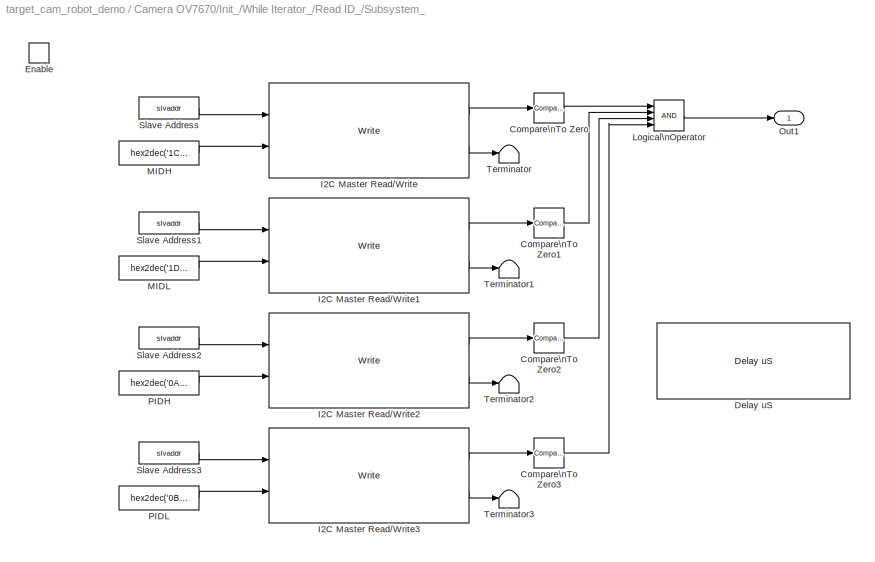
BLOCK [SubSystem] Camera OV7670/Init_/While Iterator_/Read ID_/Subsystem_
  FunctionWithSeparateData = off
  MaskHideContents = off
  MinAlgLoopOccurrences = off
  Opaque = off
  Ports = [0, 1, 1]
  PropExecContextOutsideSubsystem = off
  RTWSystemCode = Auto
  RequestExecContextInheritance = off
BLOCK [Reference] Camera OV7670/Init_/While Iterator_/Read ID_/Subsystem_/Compare\nTo Zero  REF=simulink/Logic and Bit\nOperations/Compare\nTo Zero
  FunctionWithSeparateData = off
  LogicOutDataTypeMode = uint8
  Ports = [1, 1]
  RTWMemSecDataConstants = Inherit from model
  RTWMemSecDataInternal = Inherit from model
  RTWMemSecDataParameters = Inherit from model
  RTWMemSecFuncExecute = Inherit from model
  RTWMemSecFuncInitTerm = Inherit from model
  ShowPortLabels = FromPortIcon
  SourceBlock = simulink/Logic and Bit\nOperations/Compare\nTo Zero
  SourceType = Compare To Zero
  SystemSampleTime = -1
  ZeroCross = off
  relop = ==
BLOCK [Reference] Camera OV7670/Init_/While Iterator_/Read ID_/Subsystem_/Compare\nTo Zero1  REF=simulink/Logic and Bit\nOperations/Compare\nTo Zero
  FunctionWithSeparateData = off
  LogicOutDataTypeMode = uint8
  Ports = [1, 1]
  RTWMemSecDataConstants = Inherit from model
  RTWMemSecDataInternal = Inherit from model
  RTWMemSecDataParameters = Inherit from model
  RTWMemSecFuncExecute = Inherit from model
  RTWMemSecFuncInitTerm = Inherit from model
  ShowPortLabels = FromPortIcon
  SourceBlock = simulink/Logic and Bit\nOperations/Compare\nTo Zero
  SourceType = Compare To Zero
  SystemSampleTime = -1
  ZeroCross = off
  relop = ==
BLOCK [Reference] Camera OV7670/Init_/While Iterator_/Read ID_/Subsystem_/Compare\nTo Zero2  REF=simulink/Logic and Bit\nOperations/Compare\nTo Zero
  FunctionWithSeparateData = off
  LogicOutDataTypeMode = uint8
  Ports = [1, 1]
  RTWMemSecDataConstants = Inherit from model
  RTWMemSecDataInternal = Inherit from model
  RTWMemSecDataParameters = Inherit from model
  RTWMemSecFuncExecute = Inherit from model
  RTWMemSecFuncInitTerm = Inherit from model
  ShowPortLabels = FromPortIcon
  SourceBlock = simulink/Logic and Bit\nOperations/Compare\nTo Zero
  SourceType = Compare To Zero
  SystemSampleTime = -1
  ZeroCross = off
  relop = ==
BLOCK [Reference] Camera OV7670/Init_/While Iterator_/Read ID_/Subsystem_/Compare\nTo Zero3  REF=simulink/Logic and Bit\nOperations/Compare\nTo Zero
  FunctionWithSeparateData = off
  LogicOutDataTypeMode = uint8
  Ports = [1, 1]
  RTWMemSecDataConstants = Inherit from model
  RTWMemSecDataInternal = Inherit from model
  RTWMemSecDataParameters = Inherit from model
  RTWMemSecFuncExecute = Inherit from model
  RTWMemSecFuncInitTerm = Inherit from model
  ShowPortLabels = FromPortIcon
  SourceBlock = simulink/Logic and Bit\nOperations/Compare\nTo Zero
  SourceType = Compare To Zero
  SystemSampleTime = -1
  ZeroCross = off
  relop = ==
BLOCK [Reference] Camera OV7670/Init_/While Iterator_/Read ID_/Subsystem_/Delay uS  REF=stm32f4_tim_lib/Delay uS
  Ports = []
  Priority = 0
  SourceBlock = stm32f4_tim_lib/Delay uS
  SourceType = stm32f4_delayus
  blockid = CameraOV7670Init_WhileIterator_ReadID_Subsystem_DelayuS
  delaytime = 300000
  enableinput = off
  enableoutput = off
  inputtypearray = [0]
  outputtypearray = [0]
  sampletime = -1
  sampletimestr = -1
BLOCK [EnablePort] Camera OV7670/Init_/While Iterator_/Read ID_/Subsystem_/Enable
  Ports = []
BLOCK [Reference] Camera OV7670/Init_/While Iterator_/Read ID_/Subsystem_/I2C Master Read//Write  REF=stm32f4_i2c_lib/I2C Master Read//Write
  Ports = [2, 2]
  SourceBlock = stm32f4_i2c_lib/I2C Master Read//Write
  SourceType = stm32f4_i2c
  blockid = CameraOV7670Init_WhileIterator_ReadID_Subsystem_I2CMasterReadWrite
  clkspeed = 400
  configuration = Transaction
  confstr = [\"C\",\"9\",\"A\",\"8\",\"1\",\"1\",\"6\",\"0\",\"I2C_DutyCycle_2\",\"0\",\"on\"]
  dutycycle = TLow/THigh = 2
  forcestop = on
  inputtypearray = [2 3 3]
  lastmodule = 3
  module = 1
  outputtypearray = [2 3 3]
  readcount = 1
  sampletime = -1
  sampletimestr = -1
  sclpin = A8
  sdapin = C9
  timeout = 25
  transfer = Blocking
  waitwritetime = 0
  writecount = 1
BLOCK [Reference] Camera OV7670/Init_/While Iterator_/Read ID_/Subsystem_/I2C Master Read//Write1  REF=stm32f4_i2c_lib/I2C Master Read//Write
  Ports = [2, 2]
  SourceBlock = stm32f4_i2c_lib/I2C Master Read//Write
  SourceType = stm32f4_i2c
  blockid = CameraOV7670Init_WhileIterator_ReadID_Subsystem_I2CMasterReadWrite1
  clkspeed = 400
  configuration = Transaction
  confstr = [\"C\",\"9\",\"A\",\"8\",\"1\",\"1\",\"6\",\"0\",\"I2C_DutyCycle_2\",\"0\",\"on\"]
  dutycycle = TLow/THigh = 2
  forcestop = on
  inputtypearray = [2 3 3]
  lastmodule = 3
  module = 1
  outputtypearray = [2 3 3]
  readcount = 1
  sampletime = -1
  sampletimestr = -1
  sclpin = A8
  sdapin = C9
  timeout = 25
  transfer = Blocking
  waitwritetime = 0
  writecount = 1
BLOCK [Reference] Camera OV7670/Init_/While Iterator_/Read ID_/Subsystem_/I2C Master Read//Write2  REF=stm32f4_i2c_lib/I2C Master Read//Write
  Ports = [2, 2]
  SourceBlock = stm32f4_i2c_lib/I2C Master Read//Write
  SourceType = stm32f4_i2c
  blockid = CameraOV7670Init_WhileIterator_ReadID_Subsystem_I2CMasterReadWrite2
  clkspeed = 400
  configuration = Transaction
  confstr = [\"C\",\"9\",\"A\",\"8\",\"1\",\"1\",\"6\",\"0\",\"I2C_DutyCycle_2\",\"0\",\"on\"]
  dutycycle = TLow/THigh = 2
  forcestop = on
  inputtypearray = [2 3 3]
  lastmodule = 3
  module = 1
  outputtypearray = [2 3 3]
  readcount = 1
  sampletime = -1
  sampletimestr = -1
  sclpin = A8
  sdapin = C9
  timeout = 25
  transfer = Blocking
  waitwritetime = 0
  writecount = 1
BLOCK [Reference] Camera OV7670/Init_/While Iterator_/Read ID_/Subsystem_/I2C Master Read//Write3  REF=stm32f4_i2c_lib/I2C Master Read//Write
  Ports = [2, 2]
  SourceBlock = stm32f4_i2c_lib/I2C Master Read//Write
  SourceType = stm32f4_i2c
  blockid = CameraOV7670Init_WhileIterator_ReadID_Subsystem_I2CMasterReadWrite3
  clkspeed = 400
  configuration = Transaction
  confstr = [\"C\",\"9\",\"A\",\"8\",\"1\",\"1\",\"6\",\"0\",\"I2C_DutyCycle_2\",\"0\",\"on\"]
  dutycycle = TLow/THigh = 2
  forcestop = on
  inputtypearray = [2 3 3]
  lastmodule = 3
  module = 1
  outputtypearray = [2 3 3]
  readcount = 1
  sampletime = -1
  sampletimestr = -1
  sclpin = A8
  sdapin = C9
  timeout = 25
  transfer = Blocking
  waitwritetime = 0
  writecount = 1
BLOCK [Logic] Camera OV7670/Init_/While Iterator_/Read ID_/Subsystem_/Logical\nOperator
  AllPortsSameDT = off
  Inputs = 4
  LogicDataType = fixdt(0, 8)
  OutDataTypeMode = boolean
  OutDataTypeStr = boolean
  Ports = [4, 1]
BLOCK [Constant] Camera OV7670/Init_/While Iterator_/Read ID_/Subsystem_/MIDH
  OutDataType = fixdt(1, 16)
  OutDataTypeMode = uint8
  OutDataTypeStr = uint8
  OutScaling = 2^0
  Value = hex2dec('1C')
BLOCK [Constant] Camera OV7670/Init_/While Iterator_/Read ID_/Subsystem_/MIDL
  OutDataType = fixdt(1, 16)
  OutDataTypeMode = uint8
  OutDataTypeStr = uint8
  OutScaling = 2^0
  Value = hex2dec('1D')
BLOCK [Outport] Camera OV7670/Init_/While Iterator_/Read ID_/Subsystem_/Out1
  IconDisplay = Port number
BLOCK [Constant] Camera OV7670/Init_/While Iterator_/Read ID_/Subsystem_/PIDH
  OutDataType = fixdt(1, 16)
  OutDataTypeMode = uint8
  OutDataTypeStr = uint8
  OutScaling = 2^0
  Value = hex2dec('0A')
BLOCK [Constant] Camera OV7670/Init_/While Iterator_/Read ID_/Subsystem_/PIDL
  OutDataType = fixdt(1, 16)
  OutDataTypeMode = uint8
  OutDataTypeStr = uint8
  OutScaling = 2^0
  Value = hex2dec('0B')
BLOCK [Constant] Camera OV7670/Init_/While Iterator_/Read ID_/Subsystem_/Slave Address
  OutDataType = fixdt(1, 16)
  OutDataTypeMode = uint8
  OutDataTypeStr = uint8
  OutScaling = 2^0
  Value = slvaddr
BLOCK [Constant] Camera OV7670/Init_/While Iterator_/Read ID_/Subsystem_/Slave Address1
  OutDataType = fixdt(1, 16)
  OutDataTypeMode = uint8
  OutDataTypeStr = uint8
  OutScaling = 2^0
  Value = slvaddr
BLOCK [Constant] Camera OV7670/Init_/While Iterator_/Read ID_/Subsystem_/Slave Address2
  OutDataType = fixdt(1, 16)
  OutDataTypeMode = uint8
  OutDataTypeStr = uint8
  OutScaling = 2^0
  Value = slvaddr
BLOCK [Constant] Camera OV7670/Init_/While Iterator_/Read ID_/Subsystem_/Slave Address3
  OutDataType = fixdt(1, 16)
  OutDataTypeMode = uint8
  OutDataTypeStr = uint8
  OutScaling = 2^0
  Value = slvaddr
BLOCK [Terminator] Camera OV7670/Init_/While Iterator_/Read ID_/Subsystem_/Terminator
BLOCK [Terminator] Camera OV7670/Init_/While Iterator_/Read ID_/Subsystem_/Terminator1
BLOCK [Terminator] Camera OV7670/Init_/While Iterator_/Read ID_/Subsystem_/Terminator2
BLOCK [Terminator] Camera OV7670/Init_/While Iterator_/Read ID_/Subsystem_/Terminator3
BLOCK [Outport] Camera OV7670/Init_/While Iterator_/Ready
  IconDisplay = Port number
  OutDataType = fixdt(1, 16)
  OutScaling = 2^0
BLOCK [SubSystem] Camera OV7670/Init_/While Iterator_/Reset Register_
  FunctionWithSeparateData = off
  MaskHideContents = off
  MinAlgLoopOccurrences = off
  Opaque = off
  Ports = [0, 1, 1]
  PropExecContextOutsideSubsystem = off
  RTWSystemCode = Auto
  RequestExecContextInheritance = off
BLOCK [EnablePort] Camera OV7670/Init_/While Iterator_/Reset Register_/Enable
  Ports = []
BLOCK [Logic] Camera OV7670/Init_/While Iterator_/Reset Register_/Logical\nOperator
  AllPortsSameDT = off
  LogicDataType = fixdt(0, 8)
  Operator = NOT
  OutDataTypeMode = boolean
  OutDataTypeStr = boolean
  Ports = [1, 1]
BLOCK [Memory] Camera OV7670/Init_/While Iterator_/Reset Register_/Memory
  InheritSampleTime = on
BLOCK [Outport] Camera OV7670/Init_/While Iterator_/Reset Register_/SUCCESS
  IconDisplay = Port number
  OutDataType = fixdt(1, 16)
  OutScaling = 2^0
BLOCK [SubSystem] Camera OV7670/Init_/While Iterator_/Reset Register_/Subsystem
  FunctionWithSeparateData = off
  MaskHideContents = off
  MinAlgLoopOccurrences = off
  Opaque = off
  Ports = [0, 1, 1]
  PropExecContextOutsideSubsystem = off
  RTWSystemCode = Auto
  RequestExecContextInheritance = off
BLOCK [Sum] Camera OV7670/Init_/While Iterator_/Reset Register_/Subsystem/Add
  InputSameDT = off
  OutDataType = fixdt(1, 16)
  OutDataTypeMode = Inherit via internal rule
  OutDataTypeStr = Inherit: Inherit via internal rule
  OutScaling = 2^-10
  Ports = [2, 1]
  SaturateOnIntegerOverflow = off
BLOCK [Reference] Camera OV7670/Init_/While Iterator_/Reset Register_/Subsystem/Compare\nTo Zero  REF=simulink/Logic and Bit\nOperations/Compare\nTo Zero
  FunctionWithSeparateData = off
  LogicOutDataTypeMode = uint8
  Ports = [1, 1]
  RTWMemSecDataConstants = Inherit from model
  RTWMemSecDataInternal = Inherit from model
  RTWMemSecDataParameters = Inherit from model
  RTWMemSecFuncExecute = Inherit from model
  RTWMemSecFuncInitTerm = Inherit from model
  ShowPortLabels = FromPortIcon
  SourceBlock = simulink/Logic and Bit\nOperations/Compare\nTo Zero
  SourceType = Compare To Zero
  SystemSampleTime = -1
  ZeroCross = off
  relop = ==
BLOCK [DataStoreMemory] Camera OV7670/Init_/While Iterator_/Reset Register_/Subsystem/Data Store\nMemory
  DataStoreName = Index
  DataType = uint8
  OutDataType = fixdt(1, 16)
  OutDataTypeStr = uint8
  OutScaling = 2^0
  RTWStateStorageClass = Auto
  ReadBeforeWriteMsg = warning
  VectorParams1D = on
  WriteAfterReadMsg = warning
  WriteAfterWriteMsg = warning
BLOCK [DataStoreRead] Camera OV7670/Init_/While Iterator_/Reset Register_/Subsystem/Data Store\nRead
  DataStoreName = Index
  SampleTime = -1
BLOCK [DataStoreWrite] Camera OV7670/Init_/While Iterator_/Reset Register_/Subsystem/Data Store\nWrite
  DataStoreName = Index
  SampleTime = -1
BLOCK [Reference] Camera OV7670/Init_/While Iterator_/Reset Register_/Subsystem/Delay uS  REF=stm32f4_tim_lib/Delay uS
  Ports = [1]
  SourceBlock = stm32f4_tim_lib/Delay uS
  SourceType = stm32f4_delayus
  blockid = CameraOV7670Init_WhileIterator_ResetRegister_SubsystemDelayuS
  delaytime = 200000
  enableinput = on
  enableoutput = off
  inputtypearray = [1 -1]
  outputtypearray = [0]
  sampletime = -1
  sampletimestr = -1
BLOCK [EnablePort] Camera OV7670/Init_/While Iterator_/Reset Register_/Subsystem/Enable
  Ports = []
BLOCK [Reference] Camera OV7670/Init_/While Iterator_/Reset Register_/Subsystem/I2C Master Read//Write  REF=stm32f4_i2c_lib/I2C Master Read//Write
  Ports = [3, 1]
  SourceBlock = stm32f4_i2c_lib/I2C Master Read//Write
  SourceType = stm32f4_i2c
  blockid = CameraOV7670Init_WhileIterator_ResetRegister_SubsystemI2CMasterReadWrite
  clkspeed = 400
  configuration = Transaction
  confstr = [\"C\",\"9\",\"A\",\"8\",\"1\",\"1\",\"6\",\"0\",\"I2C_DutyCycle_2\",\"300\",\"off\"]
  dutycycle = TLow/THigh = 2
  forcestop = off
  inputtypearray = [3 3 3 3]
  lastmodule = 3
  module = 1
  outputtypearray = [1 3]
  readcount = 0
  sampletime = -1
  sampletimestr = -1
  sclpin = A8
  sdapin = C9
  timeout = 25
  transfer = Blocking
  waitwritetime = 300
  writecount = 2
BLOCK [Outport] Camera OV7670/Init_/While Iterator_/Reset Register_/Subsystem/Out1
  IconDisplay = Port number
BLOCK [SubSystem] Camera OV7670/Init_/While Iterator_/Reset Register_/Subsystem/Register List
  FunctionWithSeparateData = off
  MaskCallbackString = |
  MaskEnableString = on,on
  MaskHideContents = off
  MaskIconFrame = on
  MaskIconOpaque = on
  MaskIconRotate = none
  MaskIconUnits = autoscale
  MaskPortRotate = default
  MaskPromptString = Register Index|Register Value
  MaskStyleString = edit,edit
  MaskTabNameString = ,
  MaskToolTipString = on,on
  MaskTunableValueString = on,on
  MaskValueString = uint8([hex2dec('12')])|uint8([hex2dec('80')])
  MaskVarAliasString = ,
  MaskVariables = register=@1;value=@2;
  MaskVisibilityString = on,on
  MinAlgLoopOccurrences = off
  Opaque = off
  Ports = [1, 3]
  PropExecContextOutsideSubsystem = off
  RTWSystemCode = Auto
  RequestExecContextInheritance = off
BLOCK [Constant] Camera OV7670/Init_/While Iterator_/Reset Register_/Subsystem/Register List/Constant
  OutDataType = fixdt(1, 16)
  OutScaling = 2^0
  Value = register
BLOCK [Constant] Camera OV7670/Init_/While Iterator_/Reset Register_/Subsystem/Register List/Constant2
  OutDataType = fixdt(1, 16)
  OutScaling = 2^0
  Value = value
BLOCK [Constant] Camera OV7670/Init_/While Iterator_/Reset Register_/Subsystem/Register List/Constant3
  OutDataType = fixdt(1, 16)
  OutScaling = 2^0
  Value = length(value)
BLOCK [Constant] Camera OV7670/Init_/While Iterator_/Reset Register_/Subsystem/Register List/Constant4
  OutDataType = fixdt(1, 16)
  OutScaling = 2^0
  Value = length(register)
BLOCK [Outport] Camera OV7670/Init_/While Iterator_/Reset Register_/Subsystem/Register List/Count
  IconDisplay = Port number
  OutDataType = fixdt(1, 16)
  OutScaling = 2^0
BLOCK [DataTypeConversion] Camera OV7670/Init_/While Iterator_/Reset Register_/Subsystem/Register List/Data Type Conversion
  OutDataType = fixdt(1, 16)
  OutScaling = 2^0
  RndMeth = Floor
  SaturateOnIntegerOverflow = off
BLOCK [Inport] Camera OV7670/Init_/While Iterator_/Reset Register_/Subsystem/Register List/Index
  IconDisplay = Port number
  OutDataType = fixdt(1, 16)
  OutScaling = 2^0
BLOCK [MultiPortSwitch] Camera OV7670/Init_/While Iterator_/Reset Register_/Subsystem/Register List/Index\nVector
  InputSameDT = off
  Inputs = 1
  OutDataType = fixdt(1, 16)
  OutScaling = 2^0
  Ports = [2, 1]
  SaturateOnIntegerOverflow = off
  zeroidx = on
BLOCK [MultiPortSwitch] Camera OV7670/Init_/While Iterator_/Reset Register_/Subsystem/Register List/Index\nVector1
  InputSameDT = off
  Inputs = 1
  OutDataType = fixdt(1, 16)
  OutScaling = 2^0
  Ports = [2, 1]
  SaturateOnIntegerOverflow = off
  zeroidx = on
BLOCK [Outport] Camera OV7670/Init_/While Iterator_/Reset Register_/Subsystem/Register List/Reg
  IconDisplay = Port number
  OutDataType = fixdt(1, 16)
  OutScaling = 2^0
  Port = 2
BLOCK [RelationalOperator] Camera OV7670/Init_/While Iterator_/Reset Register_/Subsystem/Register List/Relational\nOperator
  InputSameDT = off
  LogicDataType = fixdt(0, 8)
  LogicOutDataTypeMode = boolean
  Operator = <
  OutDataTypeStr = boolean
BLOCK [Switch] Camera OV7670/Init_/While Iterator_/Reset Register_/Subsystem/Register List/Switch
  Criteria = u2 ~= 0
  InputSameDT = off
  OutDataType = fixdt(1, 16)
  OutScaling = 2^0
  SaturateOnIntegerOverflow = off
BLOCK [Outport] Camera OV7670/Init_/While Iterator_/Reset Register_/Subsystem/Register List/Value
  IconDisplay = Port number
  OutDataType = fixdt(1, 16)
  OutScaling = 2^0
  Port = 3
BLOCK [RelationalOperator] Camera OV7670/Init_/While Iterator_/Reset Register_/Subsystem/Relational\nOperator
  InputSameDT = off
  LogicDataType = fixdt(0, 8)
  LogicOutDataTypeMode = boolean
  Operator = ==
  OutDataTypeStr = boolean
BLOCK [Constant] Camera OV7670/Init_/While Iterator_/Reset Register_/Subsystem/Slave Address
  OutDataType = fixdt(1, 16)
  OutDataTypeMode = uint8
  OutDataTypeStr = uint8
  OutScaling = 2^0
  Value = slvaddr
BLOCK [WhileIterator] Camera OV7670/Init_/While Iterator_/While Iterator
  MaxIters = -1
  Ports = [1]
  WhileBlockType = do-while
BLOCK [Logic] Camera OV7670/Logical\nOperator
  AllPortsSameDT = off
  LogicDataType = fixdt(0, 8)
  Operator = NOT
  OutDataTypeMode = boolean
  OutDataTypeStr = boolean
  Ports = [1, 1]
BLOCK [Memory] Camera OV7670/Memory
  InheritSampleTime = on
BLOCK [Outport] Camera OV7670/READY
  IconDisplay = Port number
  OutDataType = fixdt(1, 16)
  OutScaling = 2^0
BLOCK [RateTransition] Camera OV7670/Rate Transition
  OutPortSampleTime = sampletime
BLOCK [Reference] Compare\nTo Zero  REF=simulink/Logic and Bit\nOperations/Compare\nTo Zero
  FunctionWithSeparateData = off
  LogicOutDataTypeMode = uint8
  Ports = [1, 1]
  RTWMemSecDataConstants = Inherit from model
  RTWMemSecDataInternal = Inherit from model
  RTWMemSecDataParameters = Inherit from model
  RTWMemSecFuncExecute = Inherit from model
  RTWMemSecFuncInitTerm = Inherit from model
  ShowPortLabels = FromPortIcon
  SourceBlock = simulink/Logic and Bit\nOperations/Compare\nTo Zero
  SourceType = Compare To Zero
  SystemSampleTime = -1
  ZeroCross = off
  relop = ==
BLOCK [Constant] Constant
  OutDataType = fixdt(1, 16)
  OutDataTypeMode = uint16
  OutDataTypeStr = uint16
  OutScaling = 2^0
  Value = 7
BLOCK [SubSystem] Drive Left Motor
  FunctionWithSeparateData = off
  MaskHideContents = off
  MinAlgLoopOccurrences = off
  Opaque = off
  Ports = [1]
  PropExecContextOutsideSubsystem = off
  RTWSystemCode = Auto
  RequestExecContextInheritance = off
BLOCK [Abs] Drive Left Motor/Abs
  OutDataType = fixdt(1, 16)
  OutScaling = 2^0
  SaturateOnIntegerOverflow = off
BLOCK [S-Function] Drive Left Motor/Basic PWM
  EnableBusSupport = off
  FunctionName = stm32f4_basicpwm
  MaskCallbackString = stm32f4_basicpwm_callback('timer');|stm32f4_basicpwm_callback('pwmperiod');|stm32f4_basicpwm_callback('polarity');||stm32f4_basicpwm_callback('ch1pin');|stm32f4_basicpwm_callback('ch2pin');|stm32f4_basicpwm_callback('ch3pin');|stm32f4_basicpwm_callback('ch4pin');|stm32f4_basicpwm_callback('sampletime');|stm32f4_basicpwm_callback('sampletimestr');|stm32f4_basicpwm_callback('blockid');||stm32f4_basi...<+48ch>
  MaskDescription = This block implements basic Edge-aligned Pulse Width Modulation (PWM) generation.\nAll timers are 16-bit. The PWM period is fixed (per timer).
  MaskDisplay = text(0.95, 0.5, 'Timer: 3\\nPolarity: Active High\\nPeriod (sec) 0.005\\nTs (sec): 0.0001','ver','middle','hor','right');port_label('input', 1,'CH3 (C8)')
  MaskEnableString = on,on,on,off,on,on,on,on,on,off,off,on,on,on,on,on,off,off,off,off,off,off
  MaskHelp = web(fullfile(waijungdocroot,'stm32f4_basicpwm.htm'),'-browser')
  MaskIconFrame = on
  MaskIconOpaque = on
  MaskIconRotate = none
  MaskIconUnits = normalized
  MaskInitialization = stm32f4_basicpwm_callback('init');
  MaskPortRotate = default
  MaskPromptString = Timer|PWM Period (seconds)|Polarity|Polaritystr|Channel 1|Channel 2|Channel 3|Channel 4|Sample time (sec)|Compiled sample time (sec) in string|BlockID|Port pin string|Enable custom port labels|Custom input port labels (Ex. In1, In2, In3)|Custom output port labels (Ex. Out1, Out2, Out3)|APB|Port string|Pin string|Pin matrix|Timer ARR|Timer PRESCALE|Channel order
  MaskSelfModifiable = on
  MaskStyleString = popup(1|2|3|4|5|8|9|10|11|12|13|14),edit,popup(Active High|Active Low),edit,popup(Not available - Do not use|A6|C6|B4),popup(Not available - Do not use|A7|C7|B5),popup(Not available - Do not use|B0|C8),popup(Not available - Do not use|B1|C9),edit,edit,edit,edit,checkbox,edit,edit,edit,edit,edit,edit,edit,edit,edit
  MaskTabNameString = ,,,,,,,,,,,,,,,,,,,,,
  MaskToolTipString = on,on,on,on,on,on,on,on,on,on,on,on,on,on,on,on,on,on,on,on,on,on
  MaskTunableValueString = off,off,off,off,off,off,off,off,off,off,off,off,off,off,off,off,off,off,off,off,off,off
  MaskType = stm32f4_basicpwm
  MaskValueString = 3|0.005|Active High|TIM_OCPolarity_High|Not available - Do not use|Not available - Do not use|C8|Not available - Do not use|-1|0.0001|DriveLeftMotorBasicPWM|,,C8,|off|In1, In2, In3, In4|0|1|[\"C\"]|[\"GPIO_Pin_8\"]|[1 8]|59999|6|[3]
  MaskVarAliasString = ,,,,,,,,,,,,,,,,,,,,,
  MaskVariables = timer=&1;pwmperiod=@2;polarity=&3;polaritystr=&4;ch1pin=&5;ch2pin=&6;ch3pin=&7;ch4pin=&8;sampletime=@9;sampletimestr=&10;blockid=&11;portpinstr=&12;enablecustomportlabel=@13;cinputportlabel=&14;coutputportlabel=&15;apb=&16;portstr=&17;pinstr=&18;pinmat=@19;timarr=&20;timprescale=&21;chmat=@22;
  MaskVisibilityString = on,on,on,off,on,on,on,on,on,off,off,off,on,off,off,off,off,off,off,off,off,off
  Parameters = timer,pwmperiod,ch1pin,ch2pin,ch3pin,ch4pin,sampletime,sampletimestr,blockid,apb,portstr,pinstr,pinmat,timarr,timprescale,chmat,polaritystr
  Ports = [1]
BLOCK [SubSystem] Drive Left Motor/CCW
  FunctionWithSeparateData = off
  MaskHideContents = off
  MinAlgLoopOccurrences = off
  Opaque = off
  Ports = [0, 1, 0, 0, 0, 0, 0, 1]
  PropExecContextOutsideSubsystem = off
  RTWSystemCode = Auto
  RequestExecContextInheritance = off
  TreatAsAtomicUnit = on
BLOCK [ActionPort] Drive Left Motor/CCW/Action Port
  ActionType = elseif
BLOCK [Constant] Drive Left Motor/CCW/Constant
  OutDataType = fixdt(1, 16)
  OutScaling = 2^0
  Value = 0
BLOCK [Constant] Drive Left Motor/CCW/Constant1
  OutDataType = fixdt(1, 16)
  OutScaling = 2^0
BLOCK [Outport] Drive Left Motor/CCW/DIR
  IconDisplay = Port number
  InitialOutput = [0 0]
  OutDataType = fixdt(1, 16)
  OutScaling = 2^0
BLOCK [Mux] Drive Left Motor/CCW/Mux
  DisplayOption = bar
  Inputs = 2
  Ports = [2, 1]
BLOCK [SubSystem] Drive Left Motor/CW
  FunctionWithSeparateData = off
  MaskHideContents = off
  MinAlgLoopOccurrences = off
  Opaque = off
  Ports = [0, 1, 0, 0, 0, 0, 0, 1]
  PropExecContextOutsideSubsystem = off
  RTWSystemCode = Auto
  RequestExecContextInheritance = off
  TreatAsAtomicUnit = on
BLOCK [ActionPort] Drive Left Motor/CW/Action Port
  ActionType = then
BLOCK [Constant] Drive Left Motor/CW/Constant
  OutDataType = fixdt(1, 16)
  OutScaling = 2^0
BLOCK [Constant] Drive Left Motor/CW/Constant1
  OutDataType = fixdt(1, 16)
  OutScaling = 2^0
  Value = 0
BLOCK [Outport] Drive Left Motor/CW/DIR
  IconDisplay = Port number
  InitialOutput = [0 0]
  OutDataType = fixdt(1, 16)
  OutScaling = 2^0
BLOCK [Mux] Drive Left Motor/CW/Mux
  DisplayOption = bar
  Inputs = 2
  Ports = [2, 1]
BLOCK [Demux] Drive Left Motor/Demux
  DisplayOption = bar
  Outputs = 2
  Ports = [1, 2]
BLOCK [Reference] Drive Left Motor/Digital Output  REF=stm32f4_io_lib/Digital Output
  Ports = [2]
  SourceBlock = stm32f4_io_lib/Digital Output
  SourceType = stm32f4_digital_output
  bitbandingstr = \n#define DriveLeftMotorDigitalOutput_A11 Peripheral_BB(GPIOA->ODR, 11)  /* Output pin */\n#define DriveLeftMotorDigitalOutput_A12 Peripheral_BB(GPIOA->ODR, 12)  /* Output pin */
  blockid = DriveLeftMotorDigitalOutput
  cinputportlabel = In1, In2
  coutputportlabel = 0
  enablecustomportlabel = off
  globalinit = off
  pinstr = GPIO_Pin_11 | GPIO_Pin_12
  port = A
  porttype = Open Drain
  porttypestr = OD
  sampletime = -1
  sampletimestr = 0.0001
  speed = 100
  use_bitband = on
  use_pin0 = off
  use_pin1 = off
  use_pin10 = off
  use_pin11 = on
  use_pin12 = on
  use_pin13 = off
  use_pin14 = off
  use_pin15 = off
  use_pin2 = off
  use_pin3 = off
  use_pin4 = off
  use_pin5 = off
  use_pin6 = off
  use_pin7 = off
  use_pin8 = off
  use_pin9 = off
  usedpinarray = [0  0  0  0  0  0  0  0  0  0  0  1  1  0  0  0]
BLOCK [If] Drive Left Motor/If
  ElseIfExpressions = u1<0
  Ports = [1, 3]
BLOCK [Merge] Drive Left Motor/Merge
  InitialOutput = [0 0]
  Inputs = 3
  Ports = [3, 1]
BLOCK [Inport] Drive Left Motor/PWM \n(% Duty Cycle)
  IconDisplay = Port number
BLOCK [SubSystem] Drive Left Motor/STOP
  FunctionWithSeparateData = off
  MaskHideContents = off
  MinAlgLoopOccurrences = off
  Opaque = off
  Ports = [0, 1, 0, 0, 0, 0, 0, 1]
  PropExecContextOutsideSubsystem = off
  RTWSystemCode = Auto
  RequestExecContextInheritance = off
  TreatAsAtomicUnit = on
BLOCK [ActionPort] Drive Left Motor/STOP/Action Port
  ActionType = else
BLOCK [Constant] Drive Left Motor/STOP/Constant
  OutDataType = fixdt(1, 16)
  OutScaling = 2^0
  Value = 0
BLOCK [Constant] Drive Left Motor/STOP/Constant1
  OutDataType = fixdt(1, 16)
  OutScaling = 2^0
  Value = 0
BLOCK [Outport] Drive Left Motor/STOP/DIR
  IconDisplay = Port number
  InitialOutput = [0 0]
  OutDataType = fixdt(1, 16)
  OutScaling = 2^0
BLOCK [Mux] Drive Left Motor/STOP/Mux
  DisplayOption = bar
  Inputs = 2
  Ports = [2, 1]
BLOCK [SubSystem] Drive Right Motor
  FunctionWithSeparateData = off
  MaskHideContents = off
  MinAlgLoopOccurrences = off
  Opaque = off
  Ports = [1]
  PropExecContextOutsideSubsystem = off
  RTWSystemCode = Auto
  RequestExecContextInheritance = off
BLOCK [Abs] Drive Right Motor/Abs
  OutDataType = fixdt(1, 16)
  OutScaling = 2^0
  SaturateOnIntegerOverflow = off
BLOCK [S-Function] Drive Right Motor/Basic PWM
  EnableBusSupport = off
  FunctionName = stm32f4_basicpwm
  MaskCallbackString = stm32f4_basicpwm_callback('timer');|stm32f4_basicpwm_callback('pwmperiod');|stm32f4_basicpwm_callback('polarity');||stm32f4_basicpwm_callback('ch1pin');|stm32f4_basicpwm_callback('ch2pin');|stm32f4_basicpwm_callback('ch3pin');|stm32f4_basicpwm_callback('ch4pin');|stm32f4_basicpwm_callback('sampletime');|stm32f4_basicpwm_callback('sampletimestr');|stm32f4_basicpwm_callback('blockid');||stm32f4_basi...<+48ch>
  MaskDescription = This block implements basic Edge-aligned Pulse Width Modulation (PWM) generation.\nAll timers are 16-bit. The PWM period is fixed (per timer).
  MaskDisplay = text(0.95, 0.5, 'Timer: 1\\nPolarity: Active High\\nPeriod (sec) 0.005\\nTs (sec): 0.0001','ver','middle','hor','right');port_label('input', 1,'CH3 (A10)')
  MaskEnableString = on,on,on,off,on,on,on,on,on,off,off,on,on,on,on,on,off,off,off,off,off,off
  MaskHelp = web(fullfile(waijungdocroot,'stm32f4_basicpwm.htm'),'-browser')
  MaskIconFrame = on
  MaskIconOpaque = on
  MaskIconRotate = none
  MaskIconUnits = normalized
  MaskInitialization = stm32f4_basicpwm_callback('init');
  MaskPortRotate = default
  MaskPromptString = Timer|PWM Period (seconds)|Polarity|Polaritystr|Channel 1|Channel 2|Channel 3|Channel 4|Sample time (sec)|Compiled sample time (sec) in string|BlockID|Port pin string|Enable custom port labels|Custom input port labels (Ex. In1, In2, In3)|Custom output port labels (Ex. Out1, Out2, Out3)|APB|Port string|Pin string|Pin matrix|Timer ARR|Timer PRESCALE|Channel order
  MaskSelfModifiable = on
  MaskStyleString = popup(1|2|3|4|5|8|9|10|11|12|13|14),edit,popup(Active High|Active Low),edit,popup(Not available - Do not use|E9|A8),popup(Not available - Do not use|E11|A9),popup(Not available - Do not use|E13|A10),popup(Not available - Do not use|E14|A11),edit,edit,edit,edit,checkbox,edit,edit,edit,edit,edit,edit,edit,edit,edit
  MaskTabNameString = ,,,,,,,,,,,,,,,,,,,,,
  MaskToolTipString = on,on,on,on,on,on,on,on,on,on,on,on,on,on,on,on,on,on,on,on,on,on
  MaskTunableValueString = off,off,off,off,off,off,off,off,off,off,off,off,off,off,off,off,off,off,off,off,off,off
  MaskType = stm32f4_basicpwm
  MaskValueString = 1|0.005|Active High|TIM_OCPolarity_High|Not available - Do not use|Not available - Do not use|A10|Not available - Do not use|-1|0.0001|DriveRightMotorBasicPWM|,,A10,|off|In1, In2, In3, In4|0|2|[\"A\"]|[\"GPIO_Pin_10\"]|[1 10]|64614|12|[3]
  MaskVarAliasString = ,,,,,,,,,,,,,,,,,,,,,
  MaskVariables = timer=&1;pwmperiod=@2;polarity=&3;polaritystr=&4;ch1pin=&5;ch2pin=&6;ch3pin=&7;ch4pin=&8;sampletime=@9;sampletimestr=&10;blockid=&11;portpinstr=&12;enablecustomportlabel=@13;cinputportlabel=&14;coutputportlabel=&15;apb=&16;portstr=&17;pinstr=&18;pinmat=@19;timarr=&20;timprescale=&21;chmat=@22;
  MaskVisibilityString = on,on,on,off,on,on,on,on,on,off,off,off,on,off,off,off,off,off,off,off,off,off
  Parameters = timer,pwmperiod,ch1pin,ch2pin,ch3pin,ch4pin,sampletime,sampletimestr,blockid,apb,portstr,pinstr,pinmat,timarr,timprescale,chmat,polaritystr
  Ports = [1]
BLOCK [SubSystem] Drive Right Motor/CCW
  FunctionWithSeparateData = off
  MaskHideContents = off
  MinAlgLoopOccurrences = off
  Opaque = off
  Ports = [0, 1, 0, 0, 0, 0, 0, 1]
  PropExecContextOutsideSubsystem = off
  RTWSystemCode = Auto
  RequestExecContextInheritance = off
  TreatAsAtomicUnit = on
BLOCK [ActionPort] Drive Right Motor/CCW/Action Port
  ActionType = elseif
BLOCK [Constant] Drive Right Motor/CCW/Constant
  OutDataType = fixdt(1, 16)
  OutScaling = 2^0
  Value = 0
BLOCK [Constant] Drive Right Motor/CCW/Constant1
  OutDataType = fixdt(1, 16)
  OutScaling = 2^0
BLOCK [Outport] Drive Right Motor/CCW/DIR
  IconDisplay = Port number
  InitialOutput = [0 0]
  OutDataType = fixdt(1, 16)
  OutScaling = 2^0
BLOCK [Mux] Drive Right Motor/CCW/Mux
  DisplayOption = bar
  Inputs = 2
  Ports = [2, 1]
BLOCK [SubSystem] Drive Right Motor/CW
  FunctionWithSeparateData = off
  MaskHideContents = off
  MinAlgLoopOccurrences = off
  Opaque = off
  Ports = [0, 1, 0, 0, 0, 0, 0, 1]
  PropExecContextOutsideSubsystem = off
  RTWSystemCode = Auto
  RequestExecContextInheritance = off
  TreatAsAtomicUnit = on
BLOCK [ActionPort] Drive Right Motor/CW/Action Port
  ActionType = then
BLOCK [Constant] Drive Right Motor/CW/Constant
  OutDataType = fixdt(1, 16)
  OutScaling = 2^0
BLOCK [Constant] Drive Right Motor/CW/Constant1
  OutDataType = fixdt(1, 16)
  OutScaling = 2^0
  Value = 0
BLOCK [Outport] Drive Right Motor/CW/DIR
  IconDisplay = Port number
  InitialOutput = [0 0]
  OutDataType = fixdt(1, 16)
  OutScaling = 2^0
BLOCK [Mux] Drive Right Motor/CW/Mux
  DisplayOption = bar
  Inputs = 2
  Ports = [2, 1]
BLOCK [Demux] Drive Right Motor/Demux
  DisplayOption = bar
  Outputs = 2
  Ports = [1, 2]
BLOCK [Reference] Drive Right Motor/Digital Output  REF=stm32f4_io_lib/Digital Output
  Ports = [2]
  SourceBlock = stm32f4_io_lib/Digital Output
  SourceType = stm32f4_digital_output
  bitbandingstr = \n#define DriveRightMotorDigitalOutput_B3 Peripheral_BB(GPIOB->ODR, 3)  /* Output pin */\n#define DriveRightMotorDigitalOutput_B4 Peripheral_BB(GPIOB->ODR, 4)  /* Output pin */
  blockid = DriveRightMotorDigitalOutput
  cinputportlabel = In1, In2
  coutputportlabel = 0
  enablecustomportlabel = off
  globalinit = off
  pinstr = GPIO_Pin_3 | GPIO_Pin_4
  port = B
  porttype = Open Drain
  porttypestr = OD
  sampletime = -1
  sampletimestr = 0.0001
  speed = 100
  use_bitband = on
  use_pin0 = off
  use_pin1 = off
  use_pin10 = off
  use_pin11 = off
  use_pin12 = off
  use_pin13 = off
  use_pin14 = off
  use_pin15 = off
  use_pin2 = off
  use_pin3 = on
  use_pin4 = on
  use_pin5 = off
  use_pin6 = off
  use_pin7 = off
  use_pin8 = off
  use_pin9 = off
  usedpinarray = [0  0  0  1  1  0  0  0  0  0  0  0  0  0  0  0]
BLOCK [If] Drive Right Motor/If
  ElseIfExpressions = u1<0
  Ports = [1, 3]
BLOCK [Merge] Drive Right Motor/Merge
  InitialOutput = [0 0]
  Inputs = 3
  Ports = [3, 1]
BLOCK [Inport] Drive Right Motor/PWM \n(% Duty Cycle)
  IconDisplay = Port number
BLOCK [SubSystem] Drive Right Motor/STOP
  FunctionWithSeparateData = off
  MaskHideContents = off
  MinAlgLoopOccurrences = off
  Opaque = off
  Ports = [0, 1, 0, 0, 0, 0, 0, 1]
  PropExecContextOutsideSubsystem = off
  RTWSystemCode = Auto
  RequestExecContextInheritance = off
  TreatAsAtomicUnit = on
BLOCK [ActionPort] Drive Right Motor/STOP/Action Port
  ActionType = else
BLOCK [Constant] Drive Right Motor/STOP/Constant
  OutDataType = fixdt(1, 16)
  OutScaling = 2^0
  Value = 0
BLOCK [Constant] Drive Right Motor/STOP/Constant1
  OutDataType = fixdt(1, 16)
  OutScaling = 2^0
  Value = 0
BLOCK [Outport] Drive Right Motor/STOP/DIR
  IconDisplay = Port number
  InitialOutput = [0 0]
  OutDataType = fixdt(1, 16)
  OutScaling = 2^0
BLOCK [Mux] Drive Right Motor/STOP/Mux
  DisplayOption = bar
  Inputs = 2
  Ports = [2, 1]
BLOCK [SubSystem] Enabled\nSubsystem
  FunctionWithSeparateData = off
  MaskHideContents = off
  MinAlgLoopOccurrences = off
  Opaque = off
  Ports = [1, 1, 1]
  PropExecContextOutsideSubsystem = off
  RTWSystemCode = Auto
  RequestExecContextInheritance = off
  TreatAsAtomicUnit = on
BLOCK [EnablePort] Enabled\nSubsystem/Enable
  Ports = []
BLOCK [Inport] Enabled\nSubsystem/In1
  IconDisplay = Port number
  OutDataType = fixdt(1, 16)
  OutScaling = 2^0
BLOCK [Outport] Enabled\nSubsystem/Out1
  IconDisplay = Port number
  InitialOutput = [192 168 1 48]
  OutDataType = fixdt(1, 16)
  OutScaling = 2^0
BLOCK [SubSystem] Peripheral Setup
  FunctionWithSeparateData = off
  MaskHideContents = off
  MinAlgLoopOccurrences = off
  Opaque = off
  Ports = []
  PropExecContextOutsideSubsystem = off
  RTWSystemCode = Auto
  RequestExecContextInheritance = off
BLOCK [Reference] Peripheral Setup/Ethernet Application Setup  REF=waijung_webserver/Ethernet Application Setup
  Ports = []
  SourceBlock = waijung_webserver/Ethernet Application Setup
  SourceType = waijung_ethernet_app
  blockid = PeripheralSetupEthernetApplicationSetup
  compat = 0
  conf = Setup
  dhcp = off
  gateway = 192.168.1.1
  inputportlabel = {}
  inputporttype = []
  inputportwidth = []
  ipaddress = 192.168.1.31
  macaddress = 02-00-00-00-00-00
  netmask = 255.255.255.0
  optionstring = [\"Dummy\",\"192\",\"168\",\"1\",\"31\",\"255\",\"255\",\"255\",\"0\",\"192\",\"168\",\"1\",\"1\",\"02\",\"00\",\"00\",\"00\",\"00\",\"00\",\"off\",\"100\"]
  outputportlabel = {}
  outputporttype = []
  outputportwidth = []
  portpinstr = 0
  sampletime = 0.0001
  timerscaler = 100
BLOCK [Reference] Peripheral Setup/Ethernet Link Setup  REF=waijung_webserver/Ethernet Link Setup
  Ports = []
  SourceBlock = waijung_webserver/Ethernet Link Setup
  SourceType = waijung_ethernet_inf
  blockid = PeripheralSetupEthernetLinkSetup
  compat = 0
  conf = Setup
  inputportlabel = {}
  inputporttype = []
  inputportwidth = []
  interfacepin = Profile #2
  optionstring = [\"xxx\",\"on\",\"on\",\"on\",\"off\",\"on\",\"off\",\"on\",\"on\",\"off\",\"on\",\"on\",\"on\",\"on\",\"on\",\"on\",\"on\",\"off\",\"on\",\"on\",\"on\",\"on\",\"on\",\"on\",\"on\",\"on\",\"on\",\"on\",\"H\",\"2\",\"A\",\"1\",\"A\",\"2\",\"H\",\"3\",\"A\",\"7\",\"H\",\"6\",\"H\",\"7\",\"N\",\"ot used\",\"E\",\"2\",\"B\",\"10\",\"B\",\"11\",\"B\",\"12\",\"G\",\"14\",\"C\",\"1\",\"C\",\"2\",\"C\",\"...<+36ch>
  outputportlabel = {}
  outputporttype = []
  outputportwidth = []
  pin_col = H3
  pin_crs = H2
  pin_dv = A7
  pin_mdc = C1
  pin_mdio = A2
  pin_pps = Not used
  pin_rxclk = A1
  pin_rxd0 = C4
  pin_rxd1 = C5
  pin_rxd2 = H6
  pin_rxd3 = H7
  pin_rxer = B10
  pin_txclk = C3
  pin_txd0 = B12
  pin_txd1 = G14
  pin_txd2 = C2
  pin_txd3 = E2
  pin_txen = B11
  portpinstr = H2,A1,A2,H3,A7,H6,H7,E2,B10,B11,B12,G14,C1,C2,C3,C4,C5
  sampletime = inf
  wj_interfacetype = MII
BLOCK [S-Function] Peripheral Setup/I2C Master Setup
  EnableBusSupport = off
  FunctionName = stm32f4_i2c
  MaskCallbackString = stm32f4_i2c_callback('configuration');|stm32f4_i2c_callback('module');|||stm32f4_i2c_callback('dutycycle');|||stm32f4_i2c_callback('writecount');|stm32f4_i2c_callback('readcount');|stm32f4_i2c_callback('sdapin');|stm32f4_i2c_callback('sclpin');||||stm32f4_i2c_callback('confstr');|stm32f4_i2c_callback('sampletime');|stm32f4_i2c_callback('sampletimestr');|stm32f4_i2c_callback('blockid');
  MaskDisplay = text(0.5, 0.5, 'Module: I2C1\\nClock: 100kHz\\nSDA/SCL Pin: B7/B6','ver','middle','hor','center');
  MaskEnableString = off,on,off,off,on,on,on,on,on,on,on,on,off,off,off,on,on,on
  MaskHelp = web(fullfile(waijungdocroot,'stm32f4_i2c_setup.htm'), '-browser')
  MaskIconFrame = on
  MaskIconOpaque = on
  MaskIconRotate = none
  MaskIconUnits = normalized
  MaskInitialization = stm32f4_i2c_callback('init');
  MaskPortRotate = default
  MaskPromptString = Configuration|I2C Module|Last module|Transfer mode|Duty cycle in fast mode|Clock speed (kHz)|Timeout (ms)|Bytes write count|Bytes read count|SDA pin|SCL pin|Wait write time (ms), default is 0|Input type array|Output type array|Configuration string|Sample time (sec)|Compiled sample time (sec) in string|BlockID
  MaskSelfModifiable = on
  MaskStyleString = popup(Setup|Transaction),popup(1|2|3),edit,popup(Blocking|Non-blocking),popup(TLow/THigh = 16/9|TLow/THigh = 2),edit,edit,edit,edit,popup(Not used|B7|B9),popup(Not used|B6|B8),edit,edit,edit,edit,edit,edit,edit
  MaskTabNameString = ,,,,,,,,,,,,,,,,,
  MaskToolTipString = on,on,on,on,on,on,on,on,on,on,on,on,on,on,on,on,on,on
  MaskTunableValueString = off,off,off,off,off,off,off,off,off,off,off,off,off,off,off,off,off,off
  MaskType = stm32f4_i2c
  MaskValueString = Setup|1|1|Blocking|TLow/THigh = 2|100|25|0|0|B7|B6|0|[0]|[0]|[\"B\",\"7\",\"B\",\"6\",\"1\",\"1\",\"6\",\"0\",\"I2C_DutyCycle_2\",\"0\",\"off\"]|-1|0.0001|PeripheralSetupI2CMasterSetup
  MaskVarAliasString = ,,,,,,,,,,,,,,,,,
  MaskVariables = configuration=&1;module=&2;lastmodule=&3;transfer=&4;dutycycle=&5;clkspeed=@6;timeout=@7;writecount=@8;readcount=@9;sdapin=&10;sclpin=&11;waitwritetime=@12;inputtypearray=@13;outputtypearray=@14;confstr=&15;sampletime=@16;sampletimestr=&17;blockid=&18;
  MaskVisibilityString = off,on,off,on,on,on,on,off,off,on,on,off,off,off,off,off,off,off
  Parameters = configuration,module,transfer,clkspeed,timeout,sdapin,sclpin,writecount,readcount,inputtypearray,outputtypearray,confstr,sampletime,sampletimestr,blockid
  Ports = []
BLOCK [Reference] Peripheral Setup/MCO  REF=stm32f4_rcc_lib/MCO
  Ports = []
  SourceBlock = stm32f4_rcc_lib/MCO
  SourceType = stm32f4_mco
  blockid = PeripheralSetupMCO
  compat = 0
  conf = MCO
  confstr = [\"1\",\"HSE\",\"Div_1\"]
  div = Div_1
  inputarray = []
  inputlabelarray = {}
  module = 1
  outputarray = []
  outputlabelarray = {}
  sampletime = inf
  sampletimestr = 0.0001
  source = HSE
BLOCK [RateTransition] Rate Transition
BLOCK [Reference] Target Setup  REF=stm32f4_device_config_lib/Target Setup
  Ports = []
  Priority = 100
  SourceBlock = stm32f4_device_config_lib/Target Setup
  SourceType = stm32f4_target_setup
  assemblercontrolstr = $(patsubst %, -I%, .) -mcpu=cortex-m4 -mthumb -mthumb-interwork -mfloat-abi=hard -mfpu=fpv4-sp-d16 -ffast-math -Wall -Wextra -Ofast -Wa,-amhls=$(<:.s=.lst) -D__STACK_SIZE=$(STACK_SIZE) -D__HEAP_SIZE=$(HEAP_SIZE)
  blockid = TargetSetup
  clockconfig = HSEOSC-8MHz
  compiler = GNU ARM
  compilercontrolstr = $(patsubst %, -I%, .) -mcpu=cortex-m4 -mthumb -mthumb-interwork -mfloat-abi=hard -mfpu=fpv4-sp-d16 -ffast-math -Wall -Wextra -Ofast
  editctrlstr = on
  enableautocompiledownload = on
  execprofile = None
  flashlength = 0x100000
  flashorigin = 0x08000000
  fullchiperase = off
  hclk = 168000000
  heapsize = 0x2000
  hseval = 8000000
  lastprofileruart = 3
  linkercontrolstr = -T$(LD_SCRIPT) -g -Wl,-Map=$(MAP),--cref,--no-warn-mismatch -mcpu=cortex-m4 -mthumb -mthumb-interwork -mfloat-abi=hard -mfpu=fpv4-sp-d16 -specs=nosys.specs
  manualsetsampletime = off
  mcu = STM32F417IG (LQFP176)
  mcustr = STM32F417IG
  previous_compiler = GNU ARM
  profilerbaud = 500000
  profilerinitstr = 0.0001,168000000,16800,500000,0
  profilertxpin = D8
  profileruart = 3
  programmerinterface = ST-Link
  ramlength = 0x20000
  ramorigin = 0x20000000
  runafterdownload = on
  sampletime = 0.0001
  showmemoryconfiguration = off
  stacksize = 0x2000
  system_stm32f4xx_c_path = <path>
  systickreloadvalue = 16800
  useextram = off
BLOCK [Reference] Target UDP Receive  REF=waijung_socket_lib/Target UDP Receive
  Ports = [0, 5]
  SourceBlock = waijung_socket_lib/Target UDP Receive
  SourceType = waijung_socket
  address = 192.168.1.21
  blockid = TargetUDPReceive
  compat = 0
  conf = TargetReceive
  datacount = 2
  datasource = Ports
  datatype = uint8
  echo = off
  inputportlabel = {}
  inputporttype = []
  inputportwidth = []
  options = [7,2,1,5000,0]
  optionstring = [\"UDP\",\"7\",\"192\",\"168\",\"1\",\"21\",\"Non-blocking\",\"PortData\",\"uint8_t\",\"2\",\"Receive\",\"off\",\"\",\"\",\"\",\"\",\"\",\"\",\"\"]
  outputportlabel = {'Status','Remote Port','Remote IP(1:4)','double D0','double D1'}
  outputporttype = [7,5,3,0,0]
  outputportwidth = [1,1,4,]
  port = 7
  portpinstr = 0
  porttype_double = 2
  porttype_int16 = 0
  porttype_int32 = 0
  porttype_int8 = 0
  porttype_single = 0
  porttype_uint16 = 0
  porttype_uint32 = 0
  porttype_uint8 = 0
  protocol = UDP
  sampletime = inf
  timeout = 5
  transfer = Non-blocking
BLOCK [SubSystem] UDP Stream
  FunctionWithSeparateData = off
  MaskHideContents = off
  MinAlgLoopOccurrences = off
  Opaque = off
  Ports = [2, 0, 1]
  PropExecContextOutsideSubsystem = off
  RTWSystemCode = Auto
  RequestExecContextInheritance = off
  TreatAsAtomicUnit = on
BLOCK [EnablePort] UDP Stream/Enable
  Ports = []
BLOCK [Inport] UDP Stream/IP
  IconDisplay = Port number
  OutDataType = fixdt(1, 16)
  OutScaling = 2^0
  Port = 2
BLOCK [Inport] UDP Stream/Port
  IconDisplay = Port number
  OutDataType = fixdt(1, 16)
  OutScaling = 2^0
BLOCK [Reference] UDP Stream/Target UDP Send  REF=waijung_socket_lib/Target UDP Send
  Ports = [2, 1]
  SourceBlock = waijung_socket_lib/Target UDP Send
  SourceType = waijung_socket
  address = 192.168.1.33
  blockid = UDPStreamTargetUDPSend
  compat = 0
  conf = TargetSend
  datacount = 120*160
  datasource = BufferStream
  datatype = uint16
  echo = off
  inputportlabel = {'Port','IP',}
  inputporttype = [5,3,]
  inputportwidth = [1,4,]
  options = [7,2,0,5000,1]
  optionstring = [\"UDP\",\"7\",\"192\",\"168\",\"1\",\"33\",\"Non-blocking\",\"BufferStream\",\"uint16_t\",\"120*160\",\"Send\",\"off\",\"on\",\"Output\",\"VolatileDataArray_Output\",\"uint16\",\"19200\",\"38400\",\"1024\"]
  outputportlabel = {'Status'}
  outputporttype = [7]
  outputportwidth = []
  port = 7
  portpinstr = 0
  porttype_double = 0
  porttype_int16 = 0
  porttype_int32 = 0
  porttype_int8 = 0
  porttype_single = 0
  porttype_uint16 = 0
  porttype_uint32 = 1
  porttype_uint8 = 0
  protocol = UDP
  sampletime = -1
  streamsize = 1024
  streamsource = Output
  timeout = 5
  transfer = Non-blocking
  variableipport = on
BLOCK [Terminator] UDP Stream/Terminator
BLOCK [Reference] Volatile Data Array  REF=waijung_addon_module/Data Storage/Volatile Data Array  (lib defined in slx_cf988d149c1b)
  Ports = []
  SourceBlock = waijung_addon_module/Data Storage/Volatile Data Array
  SourceType = waijung_vdata_array
  blockid = VolatileDataArray
  compat = 0
  conf = Setup
  datacount = 0
  datasize = 160*120
  datatype = double
  inputportlabel = {}
  inputporttype = []
  inputportwidth = []
  memoryaddress = hex2dec('64000000')
  optionstring = [\"off\",\"?\",\"Output\",\"uint16\",\"19200\",\"VolatileDataArray_Output\",\"uint16_t\",\"Param1\"]
  outputportlabel = {}
  outputporttype = []
  outputportwidth = []
  portpinstr = 0
  sampletime = inf
  specificaddress = off
  storagename = Output
  storagetype = uint16
  varname = VolatileDataArray_Output
ANNOTATION (root): Electrical Connections\n\nLeft Motor\nDIR1: PA11 -> Db1\nDIR2: PA12 -> Db2\nPWM: TIM3 PC8 -> Pb\n\nRight Motor\nDIR1: PB3 -> Da1\nDIR2: PB4 -> Da2\nPWM: TIM1 PA10 -> Pa
ANNOTATION Camera OV7670/Init_/While Iterator_/Reset Register_/Subsystem: ### Delay 300ms
LINE Camera OV7670/Capture_/Compare\nTo Zero:1 -> Camera OV7670/Capture_/SUCCESS:1
LINE Camera OV7670/Capture_/DCMI Capture:1 -> Camera OV7670/Capture_/Compare\nTo Zero:1
LINE Camera OV7670/Capture_:1 -> Camera OV7670/READY:1
LINE Camera OV7670/Init_/While Iterator_/Clock Conf_/Logical\nOperator:1 -> Camera OV7670/Init_/While Iterator_/Clock Conf_/Subsystem:enable
LINE Camera OV7670/Init_/While Iterator_/Clock Conf_/Memory:1 -> Camera OV7670/Init_/While Iterator_/Clock Conf_/Logical\nOperator:1
NET Camera OV7670/Init_/While Iterator_/Clock Conf_/Subsystem/Add:1 -> Camera OV7670/Init_/While Iterator_/Clock Conf_/Subsystem/Data Store\nWrite:1, Camera OV7670/Init_/While Iterator_/Clock Conf_/Subsystem/Relational\nOperator:2
LINE Camera OV7670/Init_/While Iterator_/Clock Conf_/Subsystem/CLK24MHz_/Index:1 -> Camera OV7670/Init_/While Iterator_/Clock Conf_/Subsystem/CLK24MHz_/Reg List_:1
LINE Camera OV7670/Init_/While Iterator_/Clock Conf_/Subsystem/CLK24MHz_/Reg List_/Constant2:1 -> Camera OV7670/Init_/While Iterator_/Clock Conf_/Subsystem/CLK24MHz_/Reg List_/Index\nVector1:2
NET Camera OV7670/Init_/While Iterator_/Clock Conf_/Subsystem/CLK24MHz_/Reg List_/Constant3:1 -> Camera OV7670/Init_/While Iterator_/Clock Conf_/Subsystem/CLK24MHz_/Reg List_/Relational\nOperator:2, Camera OV7670/Init_/While Iterator_/Clock Conf_/Subsystem/CLK24MHz_/Reg List_/Switch:3
NET Camera OV7670/Init_/While Iterator_/Clock Conf_/Subsystem/CLK24MHz_/Reg List_/Constant4:1 -> Camera OV7670/Init_/While Iterator_/Clock Conf_/Subsystem/CLK24MHz_/Reg List_/Relational\nOperator:1, Camera OV7670/Init_/While Iterator_/Clock Conf_/Subsystem/CLK24MHz_/Reg List_/Switch:1
LINE Camera OV7670/Init_/While Iterator_/Clock Conf_/Subsystem/CLK24MHz_/Reg List_/Constant:1 -> Camera OV7670/Init_/While Iterator_/Clock Conf_/Subsystem/CLK24MHz_/Reg List_/Index\nVector:2
LINE Camera OV7670/Init_/While Iterator_/Clock Conf_/Subsystem/CLK24MHz_/Reg List_/Data Type Conversion:1 -> Camera OV7670/Init_/While Iterator_/Clock Conf_/Subsystem/CLK24MHz_/Reg List_/Switch:2
NET Camera OV7670/Init_/While Iterator_/Clock Conf_/Subsystem/CLK24MHz_/Reg List_/Index:1 -> Camera OV7670/Init_/While Iterator_/Clock Conf_/Subsystem/CLK24MHz_/Reg List_/Index\nVector1:1, Camera OV7670/Init_/While Iterator_/Clock Conf_/Subsystem/CLK24MHz_/Reg List_/Index\nVector:1
LINE Camera OV7670/Init_/While Iterator_/Clock Conf_/Subsystem/CLK24MHz_/Reg List_/Index\nVector1:1 -> Camera OV7670/Init_/While Iterator_/Clock Conf_/Subsystem/CLK24MHz_/Reg List_/Value:1
LINE Camera OV7670/Init_/While Iterator_/Clock Conf_/Subsystem/CLK24MHz_/Reg List_/Index\nVector:1 -> Camera OV7670/Init_/While Iterator_/Clock Conf_/Subsystem/CLK24MHz_/Reg List_/Reg:1
LINE Camera OV7670/Init_/While Iterator_/Clock Conf_/Subsystem/CLK24MHz_/Reg List_/Relational\nOperator:1 -> Camera OV7670/Init_/While Iterator_/Clock Conf_/Subsystem/CLK24MHz_/Reg List_/Data Type Conversion:1
LINE Camera OV7670/Init_/While Iterator_/Clock Conf_/Subsystem/CLK24MHz_/Reg List_/Switch:1 -> Camera OV7670/Init_/While Iterator_/Clock Conf_/Subsystem/CLK24MHz_/Reg List_/Count:1
LINE Camera OV7670/Init_/While Iterator_/Clock Conf_/Subsystem/CLK24MHz_/Reg List_:1 -> Camera OV7670/Init_/While Iterator_/Clock Conf_/Subsystem/CLK24MHz_/Count:1
LINE Camera OV7670/Init_/While Iterator_/Clock Conf_/Subsystem/CLK24MHz_/Reg List_:2 -> Camera OV7670/Init_/While Iterator_/Clock Conf_/Subsystem/CLK24MHz_/Reg:1
LINE Camera OV7670/Init_/While Iterator_/Clock Conf_/Subsystem/CLK24MHz_/Reg List_:3 -> Camera OV7670/Init_/While Iterator_/Clock Conf_/Subsystem/CLK24MHz_/Value:1
LINE Camera OV7670/Init_/While Iterator_/Clock Conf_/Subsystem/CLK24MHz_:1 -> Camera OV7670/Init_/While Iterator_/Clock Conf_/Subsystem/Merge:2
LINE Camera OV7670/Init_/While Iterator_/Clock Conf_/Subsystem/CLK24MHz_:2 -> Camera OV7670/Init_/While Iterator_/Clock Conf_/Subsystem/Merge1:2
LINE Camera OV7670/Init_/While Iterator_/Clock Conf_/Subsystem/CLK24MHz_:3 -> Camera OV7670/Init_/While Iterator_/Clock Conf_/Subsystem/Merge2:2
LINE Camera OV7670/Init_/While Iterator_/Clock Conf_/Subsystem/CLK8MHz_/Index:1 -> Camera OV7670/Init_/While Iterator_/Clock Conf_/Subsystem/CLK8MHz_/Reg List_:1
LINE Camera OV7670/Init_/While Iterator_/Clock Conf_/Subsystem/CLK8MHz_/Reg List_/Constant2:1 -> Camera OV7670/Init_/While Iterator_/Clock Conf_/Subsystem/CLK8MHz_/Reg List_/Index\nVector1:2
NET Camera OV7670/Init_/While Iterator_/Clock Conf_/Subsystem/CLK8MHz_/Reg List_/Constant3:1 -> Camera OV7670/Init_/While Iterator_/Clock Conf_/Subsystem/CLK8MHz_/Reg List_/Relational\nOperator:2, Camera OV7670/Init_/While Iterator_/Clock Conf_/Subsystem/CLK8MHz_/Reg List_/Switch:3
NET Camera OV7670/Init_/While Iterator_/Clock Conf_/Subsystem/CLK8MHz_/Reg List_/Constant4:1 -> Camera OV7670/Init_/While Iterator_/Clock Conf_/Subsystem/CLK8MHz_/Reg List_/Relational\nOperator:1, Camera OV7670/Init_/While Iterator_/Clock Conf_/Subsystem/CLK8MHz_/Reg List_/Switch:1
LINE Camera OV7670/Init_/While Iterator_/Clock Conf_/Subsystem/CLK8MHz_/Reg List_/Constant:1 -> Camera OV7670/Init_/While Iterator_/Clock Conf_/Subsystem/CLK8MHz_/Reg List_/Index\nVector:2
LINE Camera OV7670/Init_/While Iterator_/Clock Conf_/Subsystem/CLK8MHz_/Reg List_/Data Type Conversion:1 -> Camera OV7670/Init_/While Iterator_/Clock Conf_/Subsystem/CLK8MHz_/Reg List_/Switch:2
NET Camera OV7670/Init_/While Iterator_/Clock Conf_/Subsystem/CLK8MHz_/Reg List_/Index:1 -> Camera OV7670/Init_/While Iterator_/Clock Conf_/Subsystem/CLK8MHz_/Reg List_/Index\nVector1:1, Camera OV7670/Init_/While Iterator_/Clock Conf_/Subsystem/CLK8MHz_/Reg List_/Index\nVector:1
LINE Camera OV7670/Init_/While Iterator_/Clock Conf_/Subsystem/CLK8MHz_/Reg List_/Index\nVector1:1 -> Camera OV7670/Init_/While Iterator_/Clock Conf_/Subsystem/CLK8MHz_/Reg List_/Value:1
LINE Camera OV7670/Init_/While Iterator_/Clock Conf_/Subsystem/CLK8MHz_/Reg List_/Index\nVector:1 -> Camera OV7670/Init_/While Iterator_/Clock Conf_/Subsystem/CLK8MHz_/Reg List_/Reg:1
LINE Camera OV7670/Init_/While Iterator_/Clock Conf_/Subsystem/CLK8MHz_/Reg List_/Relational\nOperator:1 -> Camera OV7670/Init_/While Iterator_/Clock Conf_/Subsystem/CLK8MHz_/Reg List_/Data Type Conversion:1
LINE Camera OV7670/Init_/While Iterator_/Clock Conf_/Subsystem/CLK8MHz_/Reg List_/Switch:1 -> Camera OV7670/Init_/While Iterator_/Clock Conf_/Subsystem/CLK8MHz_/Reg List_/Count:1
LINE Camera OV7670/Init_/While Iterator_/Clock Conf_/Subsystem/CLK8MHz_/Reg List_:1 -> Camera OV7670/Init_/While Iterator_/Clock Conf_/Subsystem/CLK8MHz_/Count:1
LINE Camera OV7670/Init_/While Iterator_/Clock Conf_/Subsystem/CLK8MHz_/Reg List_:2 -> Camera OV7670/Init_/While Iterator_/Clock Conf_/Subsystem/CLK8MHz_/Reg:1
LINE Camera OV7670/Init_/While Iterator_/Clock Conf_/Subsystem/CLK8MHz_/Reg List_:3 -> Camera OV7670/Init_/While Iterator_/Clock Conf_/Subsystem/CLK8MHz_/Value:1
LINE Camera OV7670/Init_/While Iterator_/Clock Conf_/Subsystem/CLK8MHz_:1 -> Camera OV7670/Init_/While Iterator_/Clock Conf_/Subsystem/Merge:1
LINE Camera OV7670/Init_/While Iterator_/Clock Conf_/Subsystem/CLK8MHz_:2 -> Camera OV7670/Init_/While Iterator_/Clock Conf_/Subsystem/Merge1:1
LINE Camera OV7670/Init_/While Iterator_/Clock Conf_/Subsystem/CLK8MHz_:3 -> Camera OV7670/Init_/While Iterator_/Clock Conf_/Subsystem/Merge2:1
LINE Camera OV7670/Init_/While Iterator_/Clock Conf_/Subsystem/Compare\nTo Constant1:1 -> Camera OV7670/Init_/While Iterator_/Clock Conf_/Subsystem/CLK24MHz_:enable
LINE Camera OV7670/Init_/While Iterator_/Clock Conf_/Subsystem/Compare\nTo Constant:1 -> Camera OV7670/Init_/While Iterator_/Clock Conf_/Subsystem/CLK8MHz_:enable
LINE Camera OV7670/Init_/While Iterator_/Clock Conf_/Subsystem/Compare\nTo Zero:1 -> Camera OV7670/Init_/While Iterator_/Clock Conf_/Subsystem/Add:2
NET Camera OV7670/Init_/While Iterator_/Clock Conf_/Subsystem/Constant:1 -> Camera OV7670/Init_/While Iterator_/Clock Conf_/Subsystem/Compare\nTo Constant1:1, Camera OV7670/Init_/While Iterator_/Clock Conf_/Subsystem/Compare\nTo Constant:1
NET Camera OV7670/Init_/While Iterator_/Clock Conf_/Subsystem/Data Store\nRead:1 -> Camera OV7670/Init_/While Iterator_/Clock Conf_/Subsystem/Add:1, Camera OV7670/Init_/While Iterator_/Clock Conf_/Subsystem/CLK24MHz_:1, Camera OV7670/Init_/While Iterator_/Clock Conf_/Subsystem/CLK8MHz_:1
LINE Camera OV7670/Init_/While Iterator_/Clock Conf_/Subsystem/I2C Master Read//Write:1 -> Camera OV7670/Init_/While Iterator_/Clock Conf_/Subsystem/Compare\nTo Zero:1
LINE Camera OV7670/Init_/While Iterator_/Clock Conf_/Subsystem/Merge1:1 -> Camera OV7670/Init_/While Iterator_/Clock Conf_/Subsystem/I2C Master Read//Write:2
LINE Camera OV7670/Init_/While Iterator_/Clock Conf_/Subsystem/Merge2:1 -> Camera OV7670/Init_/While Iterator_/Clock Conf_/Subsystem/I2C Master Read//Write:3
LINE Camera OV7670/Init_/While Iterator_/Clock Conf_/Subsystem/Merge:1 -> Camera OV7670/Init_/While Iterator_/Clock Conf_/Subsystem/Relational\nOperator:1
LINE Camera OV7670/Init_/While Iterator_/Clock Conf_/Subsystem/Relational\nOperator:1 -> Camera OV7670/Init_/While Iterator_/Clock Conf_/Subsystem/Out1:1
LINE Camera OV7670/Init_/While Iterator_/Clock Conf_/Subsystem/Slave Address:1 -> Camera OV7670/Init_/While Iterator_/Clock Conf_/Subsystem/I2C Master Read//Write:1
NET Camera OV7670/Init_/While Iterator_/Clock Conf_/Subsystem:1 -> Camera OV7670/Init_/While Iterator_/Clock Conf_/Memory:1, Camera OV7670/Init_/While Iterator_/Clock Conf_/SUCCESS:1
LINE Camera OV7670/Init_/While Iterator_/Clock Conf_:1 -> Camera OV7670/Init_/While Iterator_/Logical\nOperator2:2
LINE Camera OV7670/Init_/While Iterator_/Common Conf_/Logical\nOperator:1 -> Camera OV7670/Init_/While Iterator_/Common Conf_/Subsystem:enable
LINE Camera OV7670/Init_/While Iterator_/Common Conf_/Memory:1 -> Camera OV7670/Init_/While Iterator_/Common Conf_/Logical\nOperator:1
NET Camera OV7670/Init_/While Iterator_/Common Conf_/Subsystem/Add:1 -> Camera OV7670/Init_/While Iterator_/Common Conf_/Subsystem/Data Store\nWrite:1, Camera OV7670/Init_/While Iterator_/Common Conf_/Subsystem/Relational\nOperator:2
LINE Camera OV7670/Init_/While Iterator_/Common Conf_/Subsystem/Compare\nTo Zero:1 -> Camera OV7670/Init_/While Iterator_/Common Conf_/Subsystem/Add:2
NET Camera OV7670/Init_/While Iterator_/Common Conf_/Subsystem/Data Store\nRead:1 -> Camera OV7670/Init_/While Iterator_/Common Conf_/Subsystem/Add:1, Camera OV7670/Init_/While Iterator_/Common Conf_/Subsystem/Register List:1
LINE Camera OV7670/Init_/While Iterator_/Common Conf_/Subsystem/I2C Master Read//Write:1 -> Camera OV7670/Init_/While Iterator_/Common Conf_/Subsystem/Compare\nTo Zero:1
LINE Camera OV7670/Init_/While Iterator_/Common Conf_/Subsystem/Register List/Constant2:1 -> Camera OV7670/Init_/While Iterator_/Common Conf_/Subsystem/Register List/Index\nVector1:2
NET Camera OV7670/Init_/While Iterator_/Common Conf_/Subsystem/Register List/Constant3:1 -> Camera OV7670/Init_/While Iterator_/Common Conf_/Subsystem/Register List/Relational\nOperator:2, Camera OV7670/Init_/While Iterator_/Common Conf_/Subsystem/Register List/Switch:3
NET Camera OV7670/Init_/While Iterator_/Common Conf_/Subsystem/Register List/Constant4:1 -> Camera OV7670/Init_/While Iterator_/Common Conf_/Subsystem/Register List/Relational\nOperator:1, Camera OV7670/Init_/While Iterator_/Common Conf_/Subsystem/Register List/Switch:1
LINE Camera OV7670/Init_/While Iterator_/Common Conf_/Subsystem/Register List/Constant:1 -> Camera OV7670/Init_/While Iterator_/Common Conf_/Subsystem/Register List/Index\nVector:2
LINE Camera OV7670/Init_/While Iterator_/Common Conf_/Subsystem/Register List/Data Type Conversion:1 -> Camera OV7670/Init_/While Iterator_/Common Conf_/Subsystem/Register List/Switch:2
NET Camera OV7670/Init_/While Iterator_/Common Conf_/Subsystem/Register List/Index:1 -> Camera OV7670/Init_/While Iterator_/Common Conf_/Subsystem/Register List/Index\nVector1:1, Camera OV7670/Init_/While Iterator_/Common Conf_/Subsystem/Register List/Index\nVector:1
LINE Camera OV7670/Init_/While Iterator_/Common Conf_/Subsystem/Register List/Index\nVector1:1 -> Camera OV7670/Init_/While Iterator_/Common Conf_/Subsystem/Register List/Value:1
LINE Camera OV7670/Init_/While Iterator_/Common Conf_/Subsystem/Register List/Index\nVector:1 -> Camera OV7670/Init_/While Iterator_/Common Conf_/Subsystem/Register List/Reg:1
LINE Camera OV7670/Init_/While Iterator_/Common Conf_/Subsystem/Register List/Relational\nOperator:1 -> Camera OV7670/Init_/While Iterator_/Common Conf_/Subsystem/Register List/Data Type Conversion:1
LINE Camera OV7670/Init_/While Iterator_/Common Conf_/Subsystem/Register List/Switch:1 -> Camera OV7670/Init_/While Iterator_/Common Conf_/Subsystem/Register List/Count:1
LINE Camera OV7670/Init_/While Iterator_/Common Conf_/Subsystem/Register List:1 -> Camera OV7670/Init_/While Iterator_/Common Conf_/Subsystem/Relational\nOperator:1
LINE Camera OV7670/Init_/While Iterator_/Common Conf_/Subsystem/Register List:2 -> Camera OV7670/Init_/While Iterator_/Common Conf_/Subsystem/I2C Master Read//Write:2
LINE Camera OV7670/Init_/While Iterator_/Common Conf_/Subsystem/Register List:3 -> Camera OV7670/Init_/While Iterator_/Common Conf_/Subsystem/I2C Master Read//Write:3
LINE Camera OV7670/Init_/While Iterator_/Common Conf_/Subsystem/Relational\nOperator:1 -> Camera OV7670/Init_/While Iterator_/Common Conf_/Subsystem/Out1:1
LINE Camera OV7670/Init_/While Iterator_/Common Conf_/Subsystem/Slave Address:1 -> Camera OV7670/Init_/While Iterator_/Common Conf_/Subsystem/I2C Master Read//Write:1
NET Camera OV7670/Init_/While Iterator_/Common Conf_/Subsystem:1 -> Camera OV7670/Init_/While Iterator_/Common Conf_/Memory:1, Camera OV7670/Init_/While Iterator_/Common Conf_/SUCCESS:1
LINE Camera OV7670/Init_/While Iterator_/Common Conf_:1 -> Camera OV7670/Init_/While Iterator_/Logical\nOperator4:2
NET Camera OV7670/Init_/While Iterator_/Logical\nOperator1:1 -> Camera OV7670/Init_/While Iterator_/Common Conf_:enable, Camera OV7670/Init_/While Iterator_/Logical\nOperator4:1
NET Camera OV7670/Init_/While Iterator_/Logical\nOperator2:1 -> Camera OV7670/Init_/While Iterator_/Logical\nOperator1:1, Camera OV7670/Init_/While Iterator_/Picture Size_:enable
NET Camera OV7670/Init_/While Iterator_/Logical\nOperator3:1 -> Camera OV7670/Init_/While Iterator_/Clock Conf_:enable, Camera OV7670/Init_/While Iterator_/Logical\nOperator2:1
NET Camera OV7670/Init_/While Iterator_/Logical\nOperator4:1 -> Camera OV7670/Init_/While Iterator_/Logical\nOperator:1, Camera OV7670/Init_/While Iterator_/Ready:1
LINE Camera OV7670/Init_/While Iterator_/Logical\nOperator:1 -> Camera OV7670/Init_/While Iterator_/While Iterator:1
LINE Camera OV7670/Init_/While Iterator_/Picture Size_/Logical\nOperator:1 -> Camera OV7670/Init_/While Iterator_/Picture Size_/Subsystem:enable
LINE Camera OV7670/Init_/While Iterator_/Picture Size_/Memory:1 -> Camera OV7670/Init_/While Iterator_/Picture Size_/Logical\nOperator:1
NET Camera OV7670/Init_/While Iterator_/Picture Size_/Subsystem/Add:1 -> Camera OV7670/Init_/While Iterator_/Picture Size_/Subsystem/Data Store\nWrite:1, Camera OV7670/Init_/While Iterator_/Picture Size_/Subsystem/Relational\nOperator:2
LINE Camera OV7670/Init_/While Iterator_/Picture Size_/Subsystem/Compare\nTo Zero:1 -> Camera OV7670/Init_/While Iterator_/Picture Size_/Subsystem/Add:2
NET Camera OV7670/Init_/While Iterator_/Picture Size_/Subsystem/Data Store\nRead:1 -> Camera OV7670/Init_/While Iterator_/Picture Size_/Subsystem/Add:1, Camera OV7670/Init_/While Iterator_/Picture Size_/Subsystem/Subsystem:1
LINE Camera OV7670/Init_/While Iterator_/Picture Size_/Subsystem/I2C Master Read//Write:1 -> Camera OV7670/Init_/While Iterator_/Picture Size_/Subsystem/Compare\nTo Zero:1
LINE Camera OV7670/Init_/While Iterator_/Picture Size_/Subsystem/Relational\nOperator:1 -> Camera OV7670/Init_/While Iterator_/Picture Size_/Subsystem/Out1:1
LINE Camera OV7670/Init_/While Iterator_/Picture Size_/Subsystem/Slave Address:1 -> Camera OV7670/Init_/While Iterator_/Picture Size_/Subsystem/I2C Master Read//Write:1
LINE Camera OV7670/Init_/While Iterator_/Picture Size_/Subsystem/Subsystem/Constant:1 -> Camera OV7670/Init_/While Iterator_/Picture Size_/Subsystem/Subsystem/Switch Case:1
LINE Camera OV7670/Init_/While Iterator_/Picture Size_/Subsystem/Subsystem/Img120x160/Index:1 -> Camera OV7670/Init_/While Iterator_/Picture Size_/Subsystem/Subsystem/Img120x160/Register List:1
LINE Camera OV7670/Init_/While Iterator_/Picture Size_/Subsystem/Subsystem/Img120x160/Register List/Constant2:1 -> Camera OV7670/Init_/While Iterator_/Picture Size_/Subsystem/Subsystem/Img120x160/Register List/Index\nVector1:2
NET Camera OV7670/Init_/While Iterator_/Picture Size_/Subsystem/Subsystem/Img120x160/Register List/Constant3:1 -> Camera OV7670/Init_/While Iterator_/Picture Size_/Subsystem/Subsystem/Img120x160/Register List/Relational\nOperator:2, Camera OV7670/Init_/While Iterator_/Picture Size_/Subsystem/Subsystem/Img120x160/Register List/Switch:3
NET Camera OV7670/Init_/While Iterator_/Picture Size_/Subsystem/Subsystem/Img120x160/Register List/Constant4:1 -> Camera OV7670/Init_/While Iterator_/Picture Size_/Subsystem/Subsystem/Img120x160/Register List/Relational\nOperator:1, Camera OV7670/Init_/While Iterator_/Picture Size_/Subsystem/Subsystem/Img120x160/Register List/Switch:1
LINE Camera OV7670/Init_/While Iterator_/Picture Size_/Subsystem/Subsystem/Img120x160/Register List/Constant:1 -> Camera OV7670/Init_/While Iterator_/Picture Size_/Subsystem/Subsystem/Img120x160/Register List/Index\nVector:2
LINE Camera OV7670/Init_/While Iterator_/Picture Size_/Subsystem/Subsystem/Img120x160/Register List/Data Type Conversion:1 -> Camera OV7670/Init_/While Iterator_/Picture Size_/Subsystem/Subsystem/Img120x160/Register List/Switch:2
NET Camera OV7670/Init_/While Iterator_/Picture Size_/Subsystem/Subsystem/Img120x160/Register List/Index:1 -> Camera OV7670/Init_/While Iterator_/Picture Size_/Subsystem/Subsystem/Img120x160/Register List/Index\nVector1:1, Camera OV7670/Init_/While Iterator_/Picture Size_/Subsystem/Subsystem/Img120x160/Register List/Index\nVector:1
LINE Camera OV7670/Init_/While Iterator_/Picture Size_/Subsystem/Subsystem/Img120x160/Register List/Index\nVector1:1 -> Camera OV7670/Init_/While Iterator_/Picture Size_/Subsystem/Subsystem/Img120x160/Register List/Value:1
LINE Camera OV7670/Init_/While Iterator_/Picture Size_/Subsystem/Subsystem/Img120x160/Register List/Index\nVector:1 -> Camera OV7670/Init_/While Iterator_/Picture Size_/Subsystem/Subsystem/Img120x160/Register List/Reg:1
LINE Camera OV7670/Init_/While Iterator_/Picture Size_/Subsystem/Subsystem/Img120x160/Register List/Relational\nOperator:1 -> Camera OV7670/Init_/While Iterator_/Picture Size_/Subsystem/Subsystem/Img120x160/Register List/Data Type Conversion:1
LINE Camera OV7670/Init_/While Iterator_/Picture Size_/Subsystem/Subsystem/Img120x160/Register List/Switch:1 -> Camera OV7670/Init_/While Iterator_/Picture Size_/Subsystem/Subsystem/Img120x160/Register List/Count:1
LINE Camera OV7670/Init_/While Iterator_/Picture Size_/Subsystem/Subsystem/Img120x160/Register List:1 -> Camera OV7670/Init_/While Iterator_/Picture Size_/Subsystem/Subsystem/Img120x160/Count:1
LINE Camera OV7670/Init_/While Iterator_/Picture Size_/Subsystem/Subsystem/Img120x160/Register List:2 -> Camera OV7670/Init_/While Iterator_/Picture Size_/Subsystem/Subsystem/Img120x160/Reg:1
LINE Camera OV7670/Init_/While Iterator_/Picture Size_/Subsystem/Subsystem/Img120x160/Register List:3 -> Camera OV7670/Init_/While Iterator_/Picture Size_/Subsystem/Subsystem/Img120x160/Value:1
LINE Camera OV7670/Init_/While Iterator_/Picture Size_/Subsystem/Subsystem/Img120x160:1 -> Camera OV7670/Init_/While Iterator_/Picture Size_/Subsystem/Subsystem/Merge_Count:1
LINE Camera OV7670/Init_/While Iterator_/Picture Size_/Subsystem/Subsystem/Img120x160:2 -> Camera OV7670/Init_/While Iterator_/Picture Size_/Subsystem/Subsystem/Merge_Reg:1
LINE Camera OV7670/Init_/While Iterator_/Picture Size_/Subsystem/Subsystem/Img120x160:3 -> Camera OV7670/Init_/While Iterator_/Picture Size_/Subsystem/Subsystem/Merge_Value:1
LINE Camera OV7670/Init_/While Iterator_/Picture Size_/Subsystem/Subsystem/Img240x320/Index:1 -> Camera OV7670/Init_/While Iterator_/Picture Size_/Subsystem/Subsystem/Img240x320/Register List:1
LINE Camera OV7670/Init_/While Iterator_/Picture Size_/Subsystem/Subsystem/Img240x320/Register List/Constant2:1 -> Camera OV7670/Init_/While Iterator_/Picture Size_/Subsystem/Subsystem/Img240x320/Register List/Index\nVector1:2
NET Camera OV7670/Init_/While Iterator_/Picture Size_/Subsystem/Subsystem/Img240x320/Register List/Constant3:1 -> Camera OV7670/Init_/While Iterator_/Picture Size_/Subsystem/Subsystem/Img240x320/Register List/Relational\nOperator:2, Camera OV7670/Init_/While Iterator_/Picture Size_/Subsystem/Subsystem/Img240x320/Register List/Switch:3
NET Camera OV7670/Init_/While Iterator_/Picture Size_/Subsystem/Subsystem/Img240x320/Register List/Constant4:1 -> Camera OV7670/Init_/While Iterator_/Picture Size_/Subsystem/Subsystem/Img240x320/Register List/Relational\nOperator:1, Camera OV7670/Init_/While Iterator_/Picture Size_/Subsystem/Subsystem/Img240x320/Register List/Switch:1
LINE Camera OV7670/Init_/While Iterator_/Picture Size_/Subsystem/Subsystem/Img240x320/Register List/Constant:1 -> Camera OV7670/Init_/While Iterator_/Picture Size_/Subsystem/Subsystem/Img240x320/Register List/Index\nVector:2
LINE Camera OV7670/Init_/While Iterator_/Picture Size_/Subsystem/Subsystem/Img240x320/Register List/Data Type Conversion:1 -> Camera OV7670/Init_/While Iterator_/Picture Size_/Subsystem/Subsystem/Img240x320/Register List/Switch:2
NET Camera OV7670/Init_/While Iterator_/Picture Size_/Subsystem/Subsystem/Img240x320/Register List/Index:1 -> Camera OV7670/Init_/While Iterator_/Picture Size_/Subsystem/Subsystem/Img240x320/Register List/Index\nVector1:1, Camera OV7670/Init_/While Iterator_/Picture Size_/Subsystem/Subsystem/Img240x320/Register List/Index\nVector:1
LINE Camera OV7670/Init_/While Iterator_/Picture Size_/Subsystem/Subsystem/Img240x320/Register List/Index\nVector1:1 -> Camera OV7670/Init_/While Iterator_/Picture Size_/Subsystem/Subsystem/Img240x320/Register List/Value:1
LINE Camera OV7670/Init_/While Iterator_/Picture Size_/Subsystem/Subsystem/Img240x320/Register List/Index\nVector:1 -> Camera OV7670/Init_/While Iterator_/Picture Size_/Subsystem/Subsystem/Img240x320/Register List/Reg:1
LINE Camera OV7670/Init_/While Iterator_/Picture Size_/Subsystem/Subsystem/Img240x320/Register List/Relational\nOperator:1 -> Camera OV7670/Init_/While Iterator_/Picture Size_/Subsystem/Subsystem/Img240x320/Register List/Data Type Conversion:1
LINE Camera OV7670/Init_/While Iterator_/Picture Size_/Subsystem/Subsystem/Img240x320/Register List/Switch:1 -> Camera OV7670/Init_/While Iterator_/Picture Size_/Subsystem/Subsystem/Img240x320/Register List/Count:1
LINE Camera OV7670/Init_/While Iterator_/Picture Size_/Subsystem/Subsystem/Img240x320/Register List:1 -> Camera OV7670/Init_/While Iterator_/Picture Size_/Subsystem/Subsystem/Img240x320/Count:1
LINE Camera OV7670/Init_/While Iterator_/Picture Size_/Subsystem/Subsystem/Img240x320/Register List:2 -> Camera OV7670/Init_/While Iterator_/Picture Size_/Subsystem/Subsystem/Img240x320/Reg:1
LINE Camera OV7670/Init_/While Iterator_/Picture Size_/Subsystem/Subsystem/Img240x320/Register List:3 -> Camera OV7670/Init_/While Iterator_/Picture Size_/Subsystem/Subsystem/Img240x320/Value:1
LINE Camera OV7670/Init_/While Iterator_/Picture Size_/Subsystem/Subsystem/Img240x320:1 -> Camera OV7670/Init_/While Iterator_/Picture Size_/Subsystem/Subsystem/Merge_Count:2
LINE Camera OV7670/Init_/While Iterator_/Picture Size_/Subsystem/Subsystem/Img240x320:2 -> Camera OV7670/Init_/While Iterator_/Picture Size_/Subsystem/Subsystem/Merge_Reg:2
LINE Camera OV7670/Init_/While Iterator_/Picture Size_/Subsystem/Subsystem/Img240x320:3 -> Camera OV7670/Init_/While Iterator_/Picture Size_/Subsystem/Subsystem/Merge_Value:2
LINE Camera OV7670/Init_/While Iterator_/Picture Size_/Subsystem/Subsystem/Img480x640/Index:1 -> Camera OV7670/Init_/While Iterator_/Picture Size_/Subsystem/Subsystem/Img480x640/Register List:1
LINE Camera OV7670/Init_/While Iterator_/Picture Size_/Subsystem/Subsystem/Img480x640/Register List/Constant2:1 -> Camera OV7670/Init_/While Iterator_/Picture Size_/Subsystem/Subsystem/Img480x640/Register List/Index\nVector1:2
NET Camera OV7670/Init_/While Iterator_/Picture Size_/Subsystem/Subsystem/Img480x640/Register List/Constant3:1 -> Camera OV7670/Init_/While Iterator_/Picture Size_/Subsystem/Subsystem/Img480x640/Register List/Relational\nOperator:2, Camera OV7670/Init_/While Iterator_/Picture Size_/Subsystem/Subsystem/Img480x640/Register List/Switch:3
NET Camera OV7670/Init_/While Iterator_/Picture Size_/Subsystem/Subsystem/Img480x640/Register List/Constant4:1 -> Camera OV7670/Init_/While Iterator_/Picture Size_/Subsystem/Subsystem/Img480x640/Register List/Relational\nOperator:1, Camera OV7670/Init_/While Iterator_/Picture Size_/Subsystem/Subsystem/Img480x640/Register List/Switch:1
LINE Camera OV7670/Init_/While Iterator_/Picture Size_/Subsystem/Subsystem/Img480x640/Register List/Constant:1 -> Camera OV7670/Init_/While Iterator_/Picture Size_/Subsystem/Subsystem/Img480x640/Register List/Index\nVector:2
LINE Camera OV7670/Init_/While Iterator_/Picture Size_/Subsystem/Subsystem/Img480x640/Register List/Data Type Conversion:1 -> Camera OV7670/Init_/While Iterator_/Picture Size_/Subsystem/Subsystem/Img480x640/Register List/Switch:2
NET Camera OV7670/Init_/While Iterator_/Picture Size_/Subsystem/Subsystem/Img480x640/Register List/Index:1 -> Camera OV7670/Init_/While Iterator_/Picture Size_/Subsystem/Subsystem/Img480x640/Register List/Index\nVector1:1, Camera OV7670/Init_/While Iterator_/Picture Size_/Subsystem/Subsystem/Img480x640/Register List/Index\nVector:1
LINE Camera OV7670/Init_/While Iterator_/Picture Size_/Subsystem/Subsystem/Img480x640/Register List/Index\nVector1:1 -> Camera OV7670/Init_/While Iterator_/Picture Size_/Subsystem/Subsystem/Img480x640/Register List/Value:1
LINE Camera OV7670/Init_/While Iterator_/Picture Size_/Subsystem/Subsystem/Img480x640/Register List/Index\nVector:1 -> Camera OV7670/Init_/While Iterator_/Picture Size_/Subsystem/Subsystem/Img480x640/Register List/Reg:1
LINE Camera OV7670/Init_/While Iterator_/Picture Size_/Subsystem/Subsystem/Img480x640/Register List/Relational\nOperator:1 -> Camera OV7670/Init_/While Iterator_/Picture Size_/Subsystem/Subsystem/Img480x640/Register List/Data Type Conversion:1
LINE Camera OV7670/Init_/While Iterator_/Picture Size_/Subsystem/Subsystem/Img480x640/Register List/Switch:1 -> Camera OV7670/Init_/While Iterator_/Picture Size_/Subsystem/Subsystem/Img480x640/Register List/Count:1
LINE Camera OV7670/Init_/While Iterator_/Picture Size_/Subsystem/Subsystem/Img480x640/Register List:1 -> Camera OV7670/Init_/While Iterator_/Picture Size_/Subsystem/Subsystem/Img480x640/Count:1
LINE Camera OV7670/Init_/While Iterator_/Picture Size_/Subsystem/Subsystem/Img480x640/Register List:2 -> Camera OV7670/Init_/While Iterator_/Picture Size_/Subsystem/Subsystem/Img480x640/Reg:1
LINE Camera OV7670/Init_/While Iterator_/Picture Size_/Subsystem/Subsystem/Img480x640/Register List:3 -> Camera OV7670/Init_/While Iterator_/Picture Size_/Subsystem/Subsystem/Img480x640/Value:1
LINE Camera OV7670/Init_/While Iterator_/Picture Size_/Subsystem/Subsystem/Img480x640:1 -> Camera OV7670/Init_/While Iterator_/Picture Size_/Subsystem/Subsystem/Merge_Count:3
LINE Camera OV7670/Init_/While Iterator_/Picture Size_/Subsystem/Subsystem/Img480x640:2 -> Camera OV7670/Init_/While Iterator_/Picture Size_/Subsystem/Subsystem/Merge_Reg:3
LINE Camera OV7670/Init_/While Iterator_/Picture Size_/Subsystem/Subsystem/Img480x640:3 -> Camera OV7670/Init_/While Iterator_/Picture Size_/Subsystem/Subsystem/Merge_Value:3
NET Camera OV7670/Init_/While Iterator_/Picture Size_/Subsystem/Subsystem/Index:1 -> Camera OV7670/Init_/While Iterator_/Picture Size_/Subsystem/Subsystem/Img120x160:1, Camera OV7670/Init_/While Iterator_/Picture Size_/Subsystem/Subsystem/Img240x320:1, Camera OV7670/Init_/While Iterator_/Picture Size_/Subsystem/Subsystem/Img480x640:1
LINE Camera OV7670/Init_/While Iterator_/Picture Size_/Subsystem/Subsystem/Merge_Count:1 -> Camera OV7670/Init_/While Iterator_/Picture Size_/Subsystem/Subsystem/Count:1
LINE Camera OV7670/Init_/While Iterator_/Picture Size_/Subsystem/Subsystem/Merge_Reg:1 -> Camera OV7670/Init_/While Iterator_/Picture Size_/Subsystem/Subsystem/Reg:1
LINE Camera OV7670/Init_/While Iterator_/Picture Size_/Subsystem/Subsystem/Merge_Value:1 -> Camera OV7670/Init_/While Iterator_/Picture Size_/Subsystem/Subsystem/Value:1
LINE Camera OV7670/Init_/While Iterator_/Picture Size_/Subsystem/Subsystem/Switch Case:1 -> Camera OV7670/Init_/While Iterator_/Picture Size_/Subsystem/Subsystem/Img120x160:ifaction
LINE Camera OV7670/Init_/While Iterator_/Picture Size_/Subsystem/Subsystem/Switch Case:2 -> Camera OV7670/Init_/While Iterator_/Picture Size_/Subsystem/Subsystem/Img240x320:ifaction
LINE Camera OV7670/Init_/While Iterator_/Picture Size_/Subsystem/Subsystem/Switch Case:3 -> Camera OV7670/Init_/While Iterator_/Picture Size_/Subsystem/Subsystem/Img480x640:ifaction
LINE Camera OV7670/Init_/While Iterator_/Picture Size_/Subsystem/Subsystem:1 -> Camera OV7670/Init_/While Iterator_/Picture Size_/Subsystem/Relational\nOperator:1
LINE Camera OV7670/Init_/While Iterator_/Picture Size_/Subsystem/Subsystem:2 -> Camera OV7670/Init_/While Iterator_/Picture Size_/Subsystem/I2C Master Read//Write:2
LINE Camera OV7670/Init_/While Iterator_/Picture Size_/Subsystem/Subsystem:3 -> Camera OV7670/Init_/While Iterator_/Picture Size_/Subsystem/I2C Master Read//Write:3
NET Camera OV7670/Init_/While Iterator_/Picture Size_/Subsystem:1 -> Camera OV7670/Init_/While Iterator_/Picture Size_/Memory:1, Camera OV7670/Init_/While Iterator_/Picture Size_/SUCCESS:1
LINE Camera OV7670/Init_/While Iterator_/Picture Size_:1 -> Camera OV7670/Init_/While Iterator_/Logical\nOperator1:2
LINE Camera OV7670/Init_/While Iterator_/Read ID_/Logical\nOperator:1 -> Camera OV7670/Init_/While Iterator_/Read ID_/Subsystem_:enable
LINE Camera OV7670/Init_/While Iterator_/Read ID_/Memory:1 -> Camera OV7670/Init_/While Iterator_/Read ID_/Logical\nOperator:1
LINE Camera OV7670/Init_/While Iterator_/Read ID_/Subsystem_/Compare\nTo Zero1:1 -> Camera OV7670/Init_/While Iterator_/Read ID_/Subsystem_/Logical\nOperator:2
LINE Camera OV7670/Init_/While Iterator_/Read ID_/Subsystem_/Compare\nTo Zero2:1 -> Camera OV7670/Init_/While Iterator_/Read ID_/Subsystem_/Logical\nOperator:3
LINE Camera OV7670/Init_/While Iterator_/Read ID_/Subsystem_/Compare\nTo Zero3:1 -> Camera OV7670/Init_/While Iterator_/Read ID_/Subsystem_/Logical\nOperator:4
LINE Camera OV7670/Init_/While Iterator_/Read ID_/Subsystem_/Compare\nTo Zero:1 -> Camera OV7670/Init_/While Iterator_/Read ID_/Subsystem_/Logical\nOperator:1
LINE Camera OV7670/Init_/While Iterator_/Read ID_/Subsystem_/I2C Master Read//Write1:1 -> Camera OV7670/Init_/While Iterator_/Read ID_/Subsystem_/Compare\nTo Zero1:1
LINE Camera OV7670/Init_/While Iterator_/Read ID_/Subsystem_/I2C Master Read//Write1:2 -> Camera OV7670/Init_/While Iterator_/Read ID_/Subsystem_/Terminator1:1
LINE Camera OV7670/Init_/While Iterator_/Read ID_/Subsystem_/I2C Master Read//Write2:1 -> Camera OV7670/Init_/While Iterator_/Read ID_/Subsystem_/Compare\nTo Zero2:1
LINE Camera OV7670/Init_/While Iterator_/Read ID_/Subsystem_/I2C Master Read//Write2:2 -> Camera OV7670/Init_/While Iterator_/Read ID_/Subsystem_/Terminator2:1
LINE Camera OV7670/Init_/While Iterator_/Read ID_/Subsystem_/I2C Master Read//Write3:1 -> Camera OV7670/Init_/While Iterator_/Read ID_/Subsystem_/Compare\nTo Zero3:1
LINE Camera OV7670/Init_/While Iterator_/Read ID_/Subsystem_/I2C Master Read//Write3:2 -> Camera OV7670/Init_/While Iterator_/Read ID_/Subsystem_/Terminator3:1
LINE Camera OV7670/Init_/While Iterator_/Read ID_/Subsystem_/I2C Master Read//Write:1 -> Camera OV7670/Init_/While Iterator_/Read ID_/Subsystem_/Compare\nTo Zero:1
LINE Camera OV7670/Init_/While Iterator_/Read ID_/Subsystem_/I2C Master Read//Write:2 -> Camera OV7670/Init_/While Iterator_/Read ID_/Subsystem_/Terminator:1
LINE Camera OV7670/Init_/While Iterator_/Read ID_/Subsystem_/Logical\nOperator:1 -> Camera OV7670/Init_/While Iterator_/Read ID_/Subsystem_/Out1:1
LINE Camera OV7670/Init_/While Iterator_/Read ID_/Subsystem_/MIDH:1 -> Camera OV7670/Init_/While Iterator_/Read ID_/Subsystem_/I2C Master Read//Write:2
LINE Camera OV7670/Init_/While Iterator_/Read ID_/Subsystem_/MIDL:1 -> Camera OV7670/Init_/While Iterator_/Read ID_/Subsystem_/I2C Master Read//Write1:2
LINE Camera OV7670/Init_/While Iterator_/Read ID_/Subsystem_/PIDH:1 -> Camera OV7670/Init_/While Iterator_/Read ID_/Subsystem_/I2C Master Read//Write2:2
LINE Camera OV7670/Init_/While Iterator_/Read ID_/Subsystem_/PIDL:1 -> Camera OV7670/Init_/While Iterator_/Read ID_/Subsystem_/I2C Master Read//Write3:2
LINE Camera OV7670/Init_/While Iterator_/Read ID_/Subsystem_/Slave Address1:1 -> Camera OV7670/Init_/While Iterator_/Read ID_/Subsystem_/I2C Master Read//Write1:1
LINE Camera OV7670/Init_/While Iterator_/Read ID_/Subsystem_/Slave Address2:1 -> Camera OV7670/Init_/While Iterator_/Read ID_/Subsystem_/I2C Master Read//Write2:1
LINE Camera OV7670/Init_/While Iterator_/Read ID_/Subsystem_/Slave Address3:1 -> Camera OV7670/Init_/While Iterator_/Read ID_/Subsystem_/I2C Master Read//Write3:1
LINE Camera OV7670/Init_/While Iterator_/Read ID_/Subsystem_/Slave Address:1 -> Camera OV7670/Init_/While Iterator_/Read ID_/Subsystem_/I2C Master Read//Write:1
NET Camera OV7670/Init_/While Iterator_/Read ID_/Subsystem_:1 -> Camera OV7670/Init_/While Iterator_/Read ID_/Memory:1, Camera OV7670/Init_/While Iterator_/Read ID_/SUCCESS:1
NET Camera OV7670/Init_/While Iterator_/Read ID_:1 -> Camera OV7670/Init_/While Iterator_/Logical\nOperator3:1, Camera OV7670/Init_/While Iterator_/Reset Register_:enable
LINE Camera OV7670/Init_/While Iterator_/Reset Register_/Logical\nOperator:1 -> Camera OV7670/Init_/While Iterator_/Reset Register_/Subsystem:enable
LINE Camera OV7670/Init_/While Iterator_/Reset Register_/Memory:1 -> Camera OV7670/Init_/While Iterator_/Reset Register_/Logical\nOperator:1
NET Camera OV7670/Init_/While Iterator_/Reset Register_/Subsystem/Add:1 -> Camera OV7670/Init_/While Iterator_/Reset Register_/Subsystem/Data Store\nWrite:1, Camera OV7670/Init_/While Iterator_/Reset Register_/Subsystem/Relational\nOperator:2
LINE Camera OV7670/Init_/While Iterator_/Reset Register_/Subsystem/Compare\nTo Zero:1 -> Camera OV7670/Init_/While Iterator_/Reset Register_/Subsystem/Add:2
NET Camera OV7670/Init_/While Iterator_/Reset Register_/Subsystem/Data Store\nRead:1 -> Camera OV7670/Init_/While Iterator_/Reset Register_/Subsystem/Add:1, Camera OV7670/Init_/While Iterator_/Reset Register_/Subsystem/Register List:1
LINE Camera OV7670/Init_/While Iterator_/Reset Register_/Subsystem/I2C Master Read//Write:1 -> Camera OV7670/Init_/While Iterator_/Reset Register_/Subsystem/Compare\nTo Zero:1
LINE Camera OV7670/Init_/While Iterator_/Reset Register_/Subsystem/Register List/Constant2:1 -> Camera OV7670/Init_/While Iterator_/Reset Register_/Subsystem/Register List/Index\nVector1:2
NET Camera OV7670/Init_/While Iterator_/Reset Register_/Subsystem/Register List/Constant3:1 -> Camera OV7670/Init_/While Iterator_/Reset Register_/Subsystem/Register List/Relational\nOperator:2, Camera OV7670/Init_/While Iterator_/Reset Register_/Subsystem/Register List/Switch:3
NET Camera OV7670/Init_/While Iterator_/Reset Register_/Subsystem/Register List/Constant4:1 -> Camera OV7670/Init_/While Iterator_/Reset Register_/Subsystem/Register List/Relational\nOperator:1, Camera OV7670/Init_/While Iterator_/Reset Register_/Subsystem/Register List/Switch:1
LINE Camera OV7670/Init_/While Iterator_/Reset Register_/Subsystem/Register List/Constant:1 -> Camera OV7670/Init_/While Iterator_/Reset Register_/Subsystem/Register List/Index\nVector:2
LINE Camera OV7670/Init_/While Iterator_/Reset Register_/Subsystem/Register List/Data Type Conversion:1 -> Camera OV7670/Init_/While Iterator_/Reset Register_/Subsystem/Register List/Switch:2
NET Camera OV7670/Init_/While Iterator_/Reset Register_/Subsystem/Register List/Index:1 -> Camera OV7670/Init_/While Iterator_/Reset Register_/Subsystem/Register List/Index\nVector1:1, Camera OV7670/Init_/While Iterator_/Reset Register_/Subsystem/Register List/Index\nVector:1
LINE Camera OV7670/Init_/While Iterator_/Reset Register_/Subsystem/Register List/Index\nVector1:1 -> Camera OV7670/Init_/While Iterator_/Reset Register_/Subsystem/Register List/Value:1
LINE Camera OV7670/Init_/While Iterator_/Reset Register_/Subsystem/Register List/Index\nVector:1 -> Camera OV7670/Init_/While Iterator_/Reset Register_/Subsystem/Register List/Reg:1
LINE Camera OV7670/Init_/While Iterator_/Reset Register_/Subsystem/Register List/Relational\nOperator:1 -> Camera OV7670/Init_/While Iterator_/Reset Register_/Subsystem/Register List/Data Type Conversion:1
LINE Camera OV7670/Init_/While Iterator_/Reset Register_/Subsystem/Register List/Switch:1 -> Camera OV7670/Init_/While Iterator_/Reset Register_/Subsystem/Register List/Count:1
LINE Camera OV7670/Init_/While Iterator_/Reset Register_/Subsystem/Register List:1 -> Camera OV7670/Init_/While Iterator_/Reset Register_/Subsystem/Relational\nOperator:1
LINE Camera OV7670/Init_/While Iterator_/Reset Register_/Subsystem/Register List:2 -> Camera OV7670/Init_/While Iterator_/Reset Register_/Subsystem/I2C Master Read//Write:2
LINE Camera OV7670/Init_/While Iterator_/Reset Register_/Subsystem/Register List:3 -> Camera OV7670/Init_/While Iterator_/Reset Register_/Subsystem/I2C Master Read//Write:3
NET Camera OV7670/Init_/While Iterator_/Reset Register_/Subsystem/Relational\nOperator:1 -> Camera OV7670/Init_/While Iterator_/Reset Register_/Subsystem/Delay uS:1, Camera OV7670/Init_/While Iterator_/Reset Register_/Subsystem/Out1:1
LINE Camera OV7670/Init_/While Iterator_/Reset Register_/Subsystem/Slave Address:1 -> Camera OV7670/Init_/While Iterator_/Reset Register_/Subsystem/I2C Master Read//Write:1
NET Camera OV7670/Init_/While Iterator_/Reset Register_/Subsystem:1 -> Camera OV7670/Init_/While Iterator_/Reset Register_/Memory:1, Camera OV7670/Init_/While Iterator_/Reset Register_/SUCCESS:1
LINE Camera OV7670/Init_/While Iterator_/Reset Register_:1 -> Camera OV7670/Init_/While Iterator_/Logical\nOperator3:2
LINE Camera OV7670/Init_/While Iterator_:1 -> Camera OV7670/Init_/Out1:1
LINE Camera OV7670/Init_:1 -> Camera OV7670/Memory:1
LINE Camera OV7670/Logical\nOperator:1 -> Camera OV7670/Init_:enable
NET Camera OV7670/Memory:1 -> Camera OV7670/Logical\nOperator:1, Camera OV7670/Rate Transition:1
LINE Camera OV7670/Rate Transition:1 -> Camera OV7670/Capture_:enable
LINE Camera OV7670:1 -> UDP Stream:enable
LINE Compare\nTo Zero:1 -> Enabled\nSubsystem:enable
LINE Constant:1 -> UDP Stream:1
LINE Drive Left Motor/Abs:1 -> Drive Left Motor/Basic PWM:1
LINE Drive Left Motor/CCW/Constant1:1 -> Drive Left Motor/CCW/Mux:2
LINE Drive Left Motor/CCW/Constant:1 -> Drive Left Motor/CCW/Mux:1
LINE Drive Left Motor/CCW/Mux:1 -> Drive Left Motor/CCW/DIR:1
LINE Drive Left Motor/CCW:1 -> Drive Left Motor/Merge:2
LINE Drive Left Motor/CW/Constant1:1 -> Drive Left Motor/CW/Mux:2
LINE Drive Left Motor/CW/Constant:1 -> Drive Left Motor/CW/Mux:1
LINE Drive Left Motor/CW/Mux:1 -> Drive Left Motor/CW/DIR:1
LINE Drive Left Motor/CW:1 -> Drive Left Motor/Merge:1
LINE Drive Left Motor/Demux:1 -> Drive Left Motor/Digital Output:1
LINE Drive Left Motor/Demux:2 -> Drive Left Motor/Digital Output:2
LINE Drive Left Motor/If:1 -> Drive Left Motor/CW:ifaction
LINE Drive Left Motor/If:2 -> Drive Left Motor/CCW:ifaction
LINE Drive Left Motor/If:3 -> Drive Left Motor/STOP:ifaction
LINE Drive Left Motor/Merge:1 -> Drive Left Motor/Demux:1
NET Drive Left Motor/PWM \n(% Duty Cycle):1 -> Drive Left Motor/Abs:1, Drive Left Motor/If:1
LINE Drive Left Motor/STOP/Constant1:1 -> Drive Left Motor/STOP/Mux:2
LINE Drive Left Motor/STOP/Constant:1 -> Drive Left Motor/STOP/Mux:1
LINE Drive Left Motor/STOP/Mux:1 -> Drive Left Motor/STOP/DIR:1
LINE Drive Left Motor/STOP:1 -> Drive Left Motor/Merge:3
LINE Drive Right Motor/Abs:1 -> Drive Right Motor/Basic PWM:1
LINE Drive Right Motor/CCW/Constant1:1 -> Drive Right Motor/CCW/Mux:2
LINE Drive Right Motor/CCW/Constant:1 -> Drive Right Motor/CCW/Mux:1
LINE Drive Right Motor/CCW/Mux:1 -> Drive Right Motor/CCW/DIR:1
LINE Drive Right Motor/CCW:1 -> Drive Right Motor/Merge:2
LINE Drive Right Motor/CW/Constant1:1 -> Drive Right Motor/CW/Mux:2
LINE Drive Right Motor/CW/Constant:1 -> Drive Right Motor/CW/Mux:1
LINE Drive Right Motor/CW/Mux:1 -> Drive Right Motor/CW/DIR:1
LINE Drive Right Motor/CW:1 -> Drive Right Motor/Merge:1
LINE Drive Right Motor/Demux:1 -> Drive Right Motor/Digital Output:1
LINE Drive Right Motor/Demux:2 -> Drive Right Motor/Digital Output:2
LINE Drive Right Motor/If:1 -> Drive Right Motor/CW:ifaction
LINE Drive Right Motor/If:2 -> Drive Right Motor/CCW:ifaction
LINE Drive Right Motor/If:3 -> Drive Right Motor/STOP:ifaction
LINE Drive Right Motor/Merge:1 -> Drive Right Motor/Demux:1
NET Drive Right Motor/PWM \n(% Duty Cycle):1 -> Drive Right Motor/Abs:1, Drive Right Motor/If:1
LINE Drive Right Motor/STOP/Constant1:1 -> Drive Right Motor/STOP/Mux:2
LINE Drive Right Motor/STOP/Constant:1 -> Drive Right Motor/STOP/Mux:1
LINE Drive Right Motor/STOP/Mux:1 -> Drive Right Motor/STOP/DIR:1
LINE Drive Right Motor/STOP:1 -> Drive Right Motor/Merge:3
LINE Enabled\nSubsystem/In1:1 -> Enabled\nSubsystem/Out1:1
LINE Enabled\nSubsystem:1 -> Rate Transition:1
LINE Rate Transition:1 -> UDP Stream:2
LINE Target UDP Receive:1 -> Compare\nTo Zero:1
LINE Target UDP Receive:3 -> Enabled\nSubsystem:1
LINE Target UDP Receive:4 -> Drive Left Motor:1
LINE Target UDP Receive:5 -> Drive Right Motor:1
LINE UDP Stream/IP:1 -> UDP Stream/Target UDP Send:2
LINE UDP Stream/Port:1 -> UDP Stream/Target UDP Send:1
LINE UDP Stream/Target UDP Send:1 -> UDP Stream/Terminator:1
note: NET lines group one-source signal fan-out (src -> all destinations, sorted); 1:1 wires keep LINE
note: 1 file-system path scrubbed to <path> (not preserved elsewhere — flat text is the only slx artifact)
